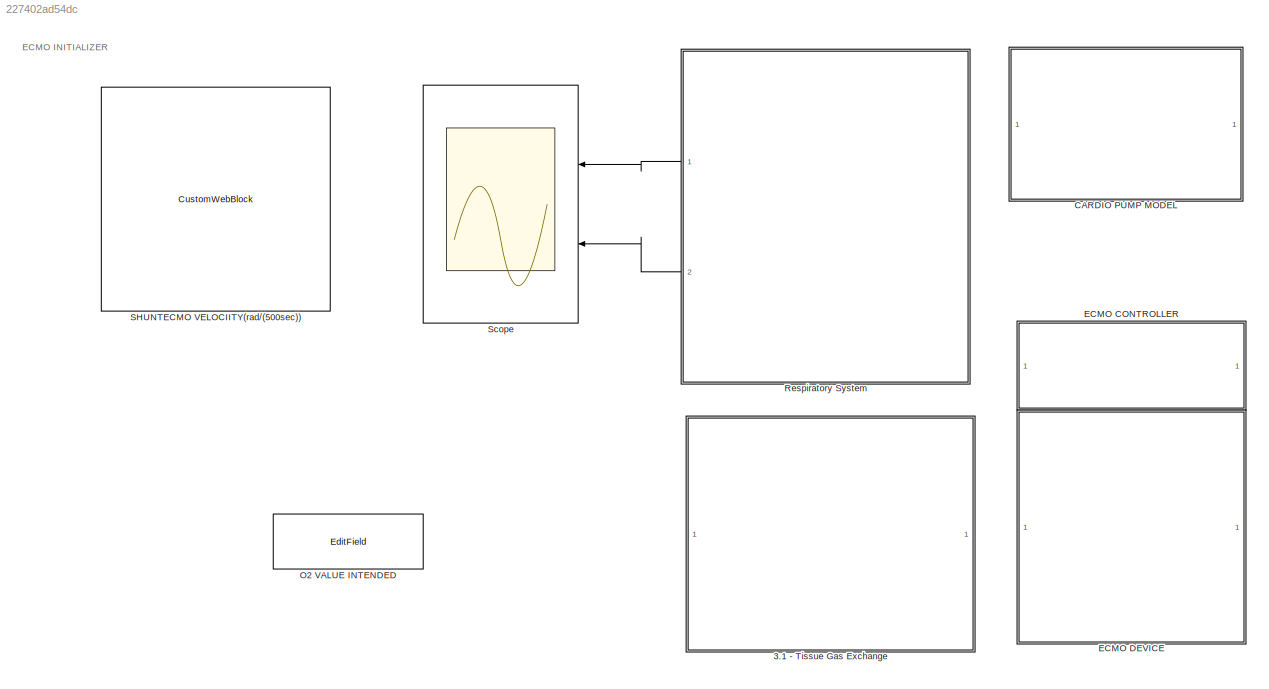
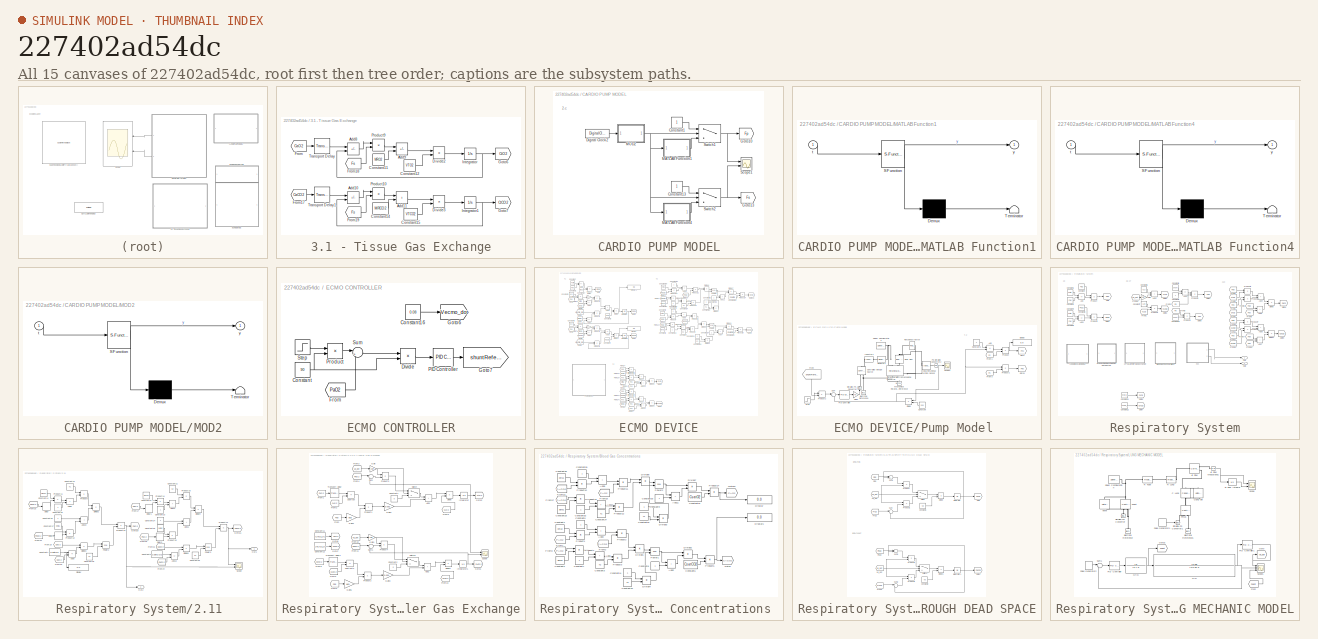
[diagram: thumbnail index - all 15 canvases of the model, root first then tree order]
MODEL slx_227402ad54dc
KIND model
CONFIG AbsTol = auto
CONFIG EnableMultiTasking = off
CONFIG FixedStep = Tsamp
CONFIG MaxStep = auto
CONFIG MinStep = auto
CONFIG RelTol = 1e-3
CONFIG SampleTimeConstraint = Unconstrained
CONFIG SolverName = ode4
CONFIG StartTime = 0.0
CONFIG StopTime = 300
WORKSPACE source: MATLAB code (in-file)
WORKSPACE Tsamp = 1e-3  (= 0.001)
WORKSPACE FIO2 = 50/100  (= 0.5)
WORKSPACE FICO2 = 0.0/100  (= 0)
WORKSPACE Patm = 760.0  (= 760)
WORKSPACE Pws = 47.0  (= 47)
WORKSPACE shunt = 36.5/100  (= 0.365)
WORKSPACE Clung = 0.062
WORKSPACE Rtube = 3.76
WORKSPACE Rlung = 1.4013
WORKSPACE VL0 = 3.40  (= 3.4)
WORKSPACE VReference = 0.2
WORKSPACE VD = 0.15
WORKSPACE PdO2_IC = 60.0  (= 60)
WORKSPACE PdCO2_IC = 53.0  (= 53)
WORKSPACE PAO2_IC = 57.0  (= 57)
WORKSPACE PACO2_IC = 55.0  (= 55)
WORKSPACE CaO2_IC = 0.184
WORKSPACE CaCO2_IC = 0.565
WORKSPACE Tau_TL = 10.0  (= 10)
WORKSPACE kEff = 0.55
WORKSPACE CsatO2 = 0.2128
WORKSPACE alpha1 = 0.03198
WORKSPACE beta1 = 0.008275
WORKSPACE K1 = 15.0  (= 15)
WORKSPACE h1 = 0.3836
WORKSPACE CsatCO2 = 1.9488
WORKSPACE alpha2 = 0.05591
WORKSPACE beta2 = 0.03255
WORKSPACE K2 = 194.4
WORKSPACE h2 = 1.819
WORKSPACE VTO2 = 7700
WORKSPACE VTCO2 = 6000
WORKSPACE MRO2 = 3.80  (= 3.8)
WORKSPACE MRCO2 = 3.30  (= 3.3)
WORKSPACE CvO2_IC = 0.134
WORKSPACE CvCO2_IC = 0.602
WORKSPACE Tau_LT = 18.0  (= 18)
WORKSPACE R = 10.0  (= 10)
WORKSPACE L = 10.0  (= 10)
WORKSPACE kem = 0.192
WORKSPACE JL = 8e-4  (= 0.0008)
WORKSPACE Ng = 0.5
WORKSPACE VEO2 = 1.5
WORKSPACE VECO2 = 1.5
WORKSPACE PEO2_IC = 200.0  (= 200)
WORKSPACE PECO2_IC = 40.0  (= 40)
WORKSPACE FIEO2 = 100/100  (= 1)
BLOCK [SubSystem] 3.1 - Tissue Gas Exchange
  Ports = []
  RequestExecContextInheritance = off
BLOCK [Sum] 3.1 - Tissue Gas Exchange/Add10
  IconShape = rectangular
  Inputs = +-
  Ports = [2, 1]
BLOCK [Sum] 3.1 - Tissue Gas Exchange/Add11
  IconShape = rectangular
  Ports = [2, 1]
BLOCK [Sum] 3.1 - Tissue Gas Exchange/Add8
  IconShape = rectangular
  Inputs = +-
  Ports = [2, 1]
BLOCK [Sum] 3.1 - Tissue Gas Exchange/Add9
  IconShape = rectangular
  Inputs = +-
  Ports = [2, 1]
BLOCK [Constant] 3.1 - Tissue Gas Exchange/Constant11
  SampleTime = Tsamp
  Value = MRO2
BLOCK [Constant] 3.1 - Tissue Gas Exchange/Constant12
  SampleTime = Tsamp
  Value = VTO2
BLOCK [Constant] 3.1 - Tissue Gas Exchange/Constant14
  SampleTime = Tsamp
  Value = MRCO2
BLOCK [Constant] 3.1 - Tissue Gas Exchange/Constant15
  SampleTime = Tsamp
  Value = VTCO2
BLOCK [Product] 3.1 - Tissue Gas Exchange/Divide2
  Inputs = */
  Ports = [2, 1]
BLOCK [Product] 3.1 - Tissue Gas Exchange/Divide3
  Inputs = */
  Ports = [2, 1]
BLOCK [From] 3.1 - Tissue Gas Exchange/From
  GotoTag = CaO2
  TagVisibility = global
BLOCK [From] 3.1 - Tissue Gas Exchange/From17
  GotoTag = CaCO2
  TagVisibility = global
BLOCK [From] 3.1 - Tissue Gas Exchange/From18
  GotoTag = Fs
  TagVisibility = global
BLOCK [From] 3.1 - Tissue Gas Exchange/From19
  GotoTag = Fs
  TagVisibility = global
BLOCK [Goto] 3.1 - Tissue Gas Exchange/Goto6
  GotoTag = CtO2
  TagVisibility = global
BLOCK [Goto] 3.1 - Tissue Gas Exchange/Goto7
  GotoTag = CtCO2
  TagVisibility = global
BLOCK [Integrator] 3.1 - Tissue Gas Exchange/Integrator
  InitialCondition = CvO2_IC
  Ports = [1, 1]
BLOCK [Integrator] 3.1 - Tissue Gas Exchange/Integrator1
  InitialCondition = CvCO2_IC
  Ports = [1, 1]
BLOCK [Product] 3.1 - Tissue Gas Exchange/Product10
  Ports = [2, 1]
BLOCK [Product] 3.1 - Tissue Gas Exchange/Product9
  Ports = [2, 1]
BLOCK [TransportDelay] 3.1 - Tissue Gas Exchange/Transport Delay
  DelayTime = Tau_LT
  InitialOutput = CaO2_IC
  Ports = [1, 1]
BLOCK [TransportDelay] 3.1 - Tissue Gas Exchange/Transport Delay1
  DelayTime = Tau_LT
  InitialOutput = CaCO2_IC
  Ports = [1, 1]
BLOCK [SubSystem] CARDIO PUMP MODEL
  Ports = []
  RequestExecContextInheritance = off
BLOCK [Constant] CARDIO PUMP MODEL/Constant1
BLOCK [Constant] CARDIO PUMP MODEL/Constant13
BLOCK [DigitalClock] CARDIO PUMP MODEL/Digital Clock2
  SampleTime = 0.001
BLOCK [Goto] CARDIO PUMP MODEL/Goto10
  GotoTag = Fp
  TagVisibility = global
BLOCK [Goto] CARDIO PUMP MODEL/Goto13
  GotoTag = Fs
  TagVisibility = global
BLOCK [SubSystem] CARDIO PUMP MODEL/MATLAB Function1
  ErrorFcn = Stateflow.Translate.translate
  PermitHierarchicalResolution = ExplicitOnly
  Ports = [1, 1]
  RequestExecContextInheritance = off
  SFBlockType = MATLAB Function
  TreatAsAtomicUnit = on
BLOCK [Demux] CARDIO PUMP MODEL/MATLAB Function1/ Demux 
  Outputs = 1
  Ports = [1, 1]
BLOCK [S-Function] CARDIO PUMP MODEL/MATLAB Function1/ SFunction 
  EnableBusSupport = on
  FunctionName = sf_sfun
  PortCounts = [1 2]
  Ports = [1, 2]
  SFcnIsStateOwnerBlock = off
  SFunctionDeploymentMode = off
  Tag = Stateflow S-Function 1
BLOCK [Terminator] CARDIO PUMP MODEL/MATLAB Function1/ Terminator 
BLOCK [Inport] CARDIO PUMP MODEL/MATLAB Function1/t
BLOCK [Outport] CARDIO PUMP MODEL/MATLAB Function1/y
BLOCK [SubSystem] CARDIO PUMP MODEL/MATLAB Function4
  ErrorFcn = Stateflow.Translate.translate
  PermitHierarchicalResolution = ExplicitOnly
  Ports = [1, 1]
  RequestExecContextInheritance = off
  SFBlockType = MATLAB Function
  TreatAsAtomicUnit = on
BLOCK [Demux] CARDIO PUMP MODEL/MATLAB Function4/ Demux 
  Outputs = 1
  Ports = [1, 1]
BLOCK [S-Function] CARDIO PUMP MODEL/MATLAB Function4/ SFunction 
  EnableBusSupport = on
  FunctionName = sf_sfun
  PortCounts = [1 2]
  Ports = [1, 2]
  SFcnIsStateOwnerBlock = off
  SFunctionDeploymentMode = off
  Tag = Stateflow S-Function 2
BLOCK [Terminator] CARDIO PUMP MODEL/MATLAB Function4/ Terminator 
BLOCK [Inport] CARDIO PUMP MODEL/MATLAB Function4/t
BLOCK [Outport] CARDIO PUMP MODEL/MATLAB Function4/y
BLOCK [SubSystem] CARDIO PUMP MODEL/MOD2
  ErrorFcn = Stateflow.Translate.translate
  PermitHierarchicalResolution = ExplicitOnly
  Ports = [1, 1]
  RequestExecContextInheritance = off
  SFBlockType = MATLAB Function
  TreatAsAtomicUnit = on
BLOCK [Demux] CARDIO PUMP MODEL/MOD2/ Demux 
  Outputs = 1
  Ports = [1, 1]
BLOCK [S-Function] CARDIO PUMP MODEL/MOD2/ SFunction 
  EnableBusSupport = on
  FunctionName = sf_sfun
  PortCounts = [1 2]
  Ports = [1, 2]
  SFcnIsStateOwnerBlock = off
  SFunctionDeploymentMode = off
  Tag = Stateflow S-Function 3
BLOCK [Terminator] CARDIO PUMP MODEL/MOD2/ Terminator 
BLOCK [Inport] CARDIO PUMP MODEL/MOD2/t
BLOCK [Outport] CARDIO PUMP MODEL/MOD2/y
BLOCK [Scope] CARDIO PUMP MODEL/Scope1
  Floating = off
  NumInputPorts = 2
  Ports = [2]
  ScopeSpecificationString = Simulink.scopes.TimeScopeBlockCfg('CurrentConfiguration', extmgr.ConfigurationSet(extmgr.Configuration('Core','General UI',true),extmgr.Configuration('Core','Source UI',true),extmgr.Configuration('Sources','WiredSimulink',true,'DataLoggingVariableName','ScopeData1'),extmgr.Configuration('Visuals','Time Domain',true,'SerializedDisplays',{struct('MinYLimReal','-82.75','MaxYLimReal','754.75','YLabelR...<+1467ch>
BLOCK [Switch] CARDIO PUMP MODEL/Switch1
  Criteria = u2 > Threshold
  InputSameDT = off
  SaturateOnIntegerOverflow = off
  Threshold = 0.25
BLOCK [Switch] CARDIO PUMP MODEL/Switch2
  Criteria = u2 > Threshold
  InputSameDT = off
  SaturateOnIntegerOverflow = off
  Threshold = 0.19
BLOCK [SubSystem] ECMO CONTROLLER
  NameLocation = top
  Ports = []
  RequestExecContextInheritance = off
BLOCK [Constant] ECMO CONTROLLER/Constant
  Value = 90
BLOCK [Constant] ECMO CONTROLLER/Constant16
  Value = 0.08
BLOCK [Product] ECMO CONTROLLER/Divide
  Inputs = */
  Ports = [2, 1]
BLOCK [From] ECMO CONTROLLER/From
  GotoTag = PaO2
  TagVisibility = global
BLOCK [Goto] ECMO CONTROLLER/Goto6
  GotoTag = Vecmo_dot
  TagVisibility = global
BLOCK [Goto] ECMO CONTROLLER/Goto7
  GotoTag = shuntReference
  TagVisibility = global
BLOCK [Reference] ECMO CONTROLLER/PID Controller  REF=pid_lib/PID Controller
  Ports = [1, 1]
  SourceBlock = pid_lib/PID Controller
  SourceProductBaseCode = SL
  SourceType = PID 1dof
BLOCK [Product] ECMO CONTROLLER/Product
  Ports = [2, 1]
BLOCK [Step] ECMO CONTROLLER/Step
  SampleTime = 0
  Time = 0
BLOCK [Sum] ECMO CONTROLLER/Sum
  Inputs = |+-
  Ports = [2, 1]
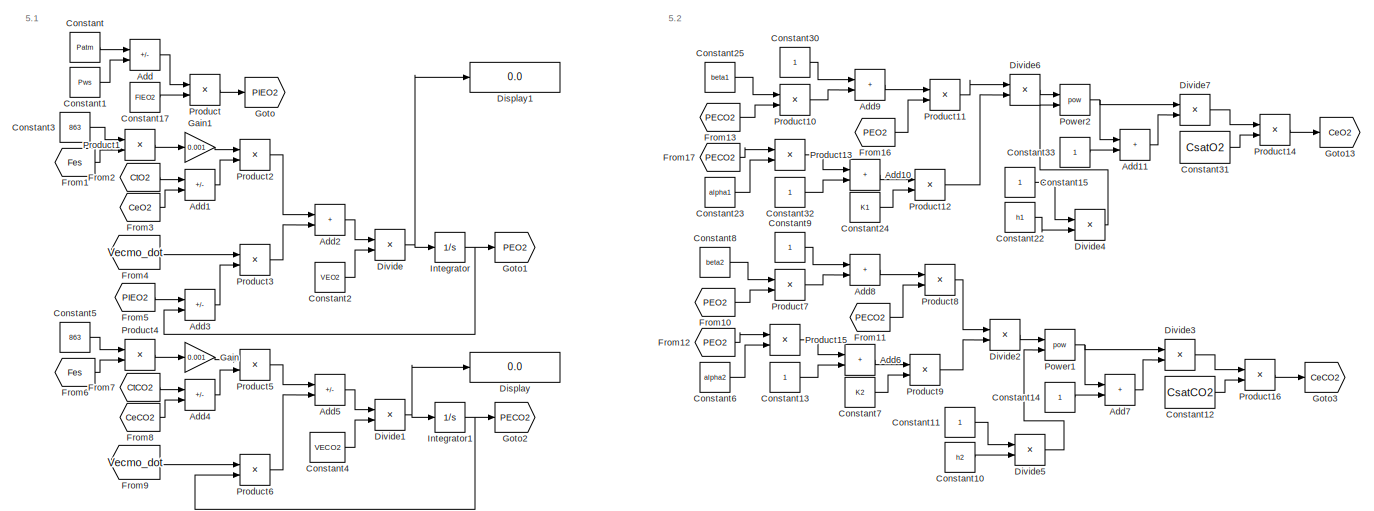
[diagram: ECMO DEVICE - part 1/2, full width, top band]
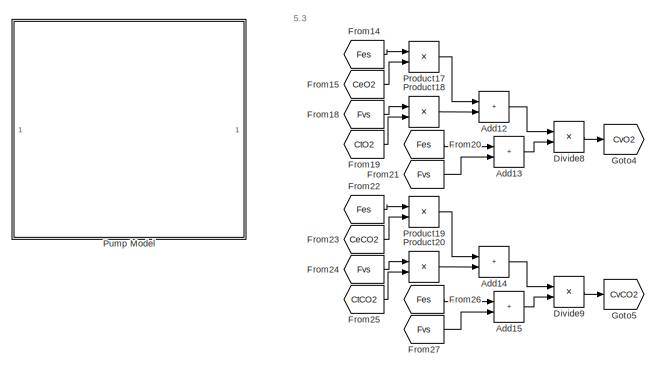
[diagram: ECMO DEVICE - part 2/2, bottom left region]
BLOCK [SubSystem] ECMO DEVICE
  Ports = []
  RequestExecContextInheritance = off
BLOCK [Sum] ECMO DEVICE/Add
  IconShape = rectangular
  Inputs = +-
  Ports = [2, 1]
BLOCK [Sum] ECMO DEVICE/Add1
  IconShape = rectangular
  Inputs = +-
  Ports = [2, 1]
BLOCK [Sum] ECMO DEVICE/Add10
  IconShape = rectangular
  Ports = [2, 1]
BLOCK [Sum] ECMO DEVICE/Add11
  IconShape = rectangular
  Ports = [2, 1]
BLOCK [Sum] ECMO DEVICE/Add12
  IconShape = rectangular
  Ports = [2, 1]
BLOCK [Sum] ECMO DEVICE/Add13
  IconShape = rectangular
  Ports = [2, 1]
BLOCK [Sum] ECMO DEVICE/Add14
  IconShape = rectangular
  Ports = [2, 1]
BLOCK [Sum] ECMO DEVICE/Add15
  IconShape = rectangular
  Ports = [2, 1]
BLOCK [Sum] ECMO DEVICE/Add2
  IconShape = rectangular
  Ports = [2, 1]
BLOCK [Sum] ECMO DEVICE/Add3
  IconShape = rectangular
  Inputs = +-
  Ports = [2, 1]
BLOCK [Sum] ECMO DEVICE/Add4
  IconShape = rectangular
  Inputs = +-
  Ports = [2, 1]
BLOCK [Sum] ECMO DEVICE/Add5
  IconShape = rectangular
  Inputs = +-
  Ports = [2, 1]
BLOCK [Sum] ECMO DEVICE/Add6
  IconShape = rectangular
  Ports = [2, 1]
BLOCK [Sum] ECMO DEVICE/Add7
  IconShape = rectangular
  Ports = [2, 1]
BLOCK [Sum] ECMO DEVICE/Add8
  IconShape = rectangular
  Ports = [2, 1]
BLOCK [Sum] ECMO DEVICE/Add9
  IconShape = rectangular
  Ports = [2, 1]
BLOCK [Constant] ECMO DEVICE/Constant
  Value = Patm
BLOCK [Constant] ECMO DEVICE/Constant1
  Value = Pws
BLOCK [Constant] ECMO DEVICE/Constant10
  SampleTime = Tsamp
  Value = h2
BLOCK [Constant] ECMO DEVICE/Constant11
  SampleTime = Tsamp
BLOCK [Constant] ECMO DEVICE/Constant12
  SampleTime = Tsamp
  Value = CsatCO2
BLOCK [Constant] ECMO DEVICE/Constant13
  SampleTime = Tsamp
BLOCK [Constant] ECMO DEVICE/Constant14
  SampleTime = Tsamp
BLOCK [Constant] ECMO DEVICE/Constant15
  SampleTime = Tsamp
BLOCK [Constant] ECMO DEVICE/Constant17
  Value = FIEO2
BLOCK [Constant] ECMO DEVICE/Constant2
  Value = VEO2
BLOCK [Constant] ECMO DEVICE/Constant22
  SampleTime = Tsamp
  Value = h1
BLOCK [Constant] ECMO DEVICE/Constant23
  SampleTime = Tsamp
  Value = alpha1
BLOCK [Constant] ECMO DEVICE/Constant24
  SampleTime = Tsamp
  Value = K1
BLOCK [Constant] ECMO DEVICE/Constant25
  SampleTime = Tsamp
  Value = beta1
BLOCK [Constant] ECMO DEVICE/Constant3
  Value = 863
BLOCK [Constant] ECMO DEVICE/Constant30
  SampleTime = Tsamp
BLOCK [Constant] ECMO DEVICE/Constant31
  SampleTime = Tsamp
  Value = CsatO2
BLOCK [Constant] ECMO DEVICE/Constant32
  SampleTime = Tsamp
BLOCK [Constant] ECMO DEVICE/Constant33
  SampleTime = Tsamp
BLOCK [Constant] ECMO DEVICE/Constant4
  Value = VECO2
BLOCK [Constant] ECMO DEVICE/Constant5
  Value = 863
BLOCK [Constant] ECMO DEVICE/Constant6
  SampleTime = Tsamp
  Value = alpha2
BLOCK [Constant] ECMO DEVICE/Constant7
  SampleTime = Tsamp
  Value = K2
BLOCK [Constant] ECMO DEVICE/Constant8
  SampleTime = Tsamp
  Value = beta2
BLOCK [Constant] ECMO DEVICE/Constant9
  SampleTime = Tsamp
BLOCK [Display] ECMO DEVICE/Display
  Decimation = 1
  Ports = [1]
BLOCK [Display] ECMO DEVICE/Display1
  Decimation = 1
  Ports = [1]
BLOCK [Product] ECMO DEVICE/Divide
  Inputs = */
  Ports = [2, 1]
BLOCK [Product] ECMO DEVICE/Divide1
  Inputs = */
  Ports = [2, 1]
BLOCK [Product] ECMO DEVICE/Divide2
  Inputs = */
  Ports = [2, 1]
BLOCK [Product] ECMO DEVICE/Divide3
  Inputs = */
  Ports = [2, 1]
BLOCK [Product] ECMO DEVICE/Divide4
  Inputs = */
  Ports = [2, 1]
BLOCK [Product] ECMO DEVICE/Divide5
  Inputs = */
  Ports = [2, 1]
BLOCK [Product] ECMO DEVICE/Divide6
  Inputs = */
  Ports = [2, 1]
BLOCK [Product] ECMO DEVICE/Divide7
  Inputs = */
  Ports = [2, 1]
BLOCK [Product] ECMO DEVICE/Divide8
  Inputs = */
  Ports = [2, 1]
BLOCK [Product] ECMO DEVICE/Divide9
  Inputs = */
  Ports = [2, 1]
BLOCK [From] ECMO DEVICE/From1
  GotoTag = Fes
  TagVisibility = global
BLOCK [From] ECMO DEVICE/From10
  GotoTag = PEO2
  TagVisibility = global
BLOCK [From] ECMO DEVICE/From11
  GotoTag = PECO2
  TagVisibility = global
BLOCK [From] ECMO DEVICE/From12
  GotoTag = PEO2
  TagVisibility = global
BLOCK [From] ECMO DEVICE/From13
  GotoTag = PECO2
  TagVisibility = global
BLOCK [From] ECMO DEVICE/From14
  GotoTag = Fes
  TagVisibility = global
BLOCK [From] ECMO DEVICE/From15
  GotoTag = CeO2
  TagVisibility = global
BLOCK [From] ECMO DEVICE/From16
  GotoTag = PEO2
  TagVisibility = global
BLOCK [From] ECMO DEVICE/From17
  GotoTag = PECO2
  TagVisibility = global
BLOCK [From] ECMO DEVICE/From18
  GotoTag = Fvs
  TagVisibility = global
BLOCK [From] ECMO DEVICE/From19
  GotoTag = CtO2
  TagVisibility = global
BLOCK [From] ECMO DEVICE/From2
  GotoTag = CtO2
  TagVisibility = global
BLOCK [From] ECMO DEVICE/From20
  GotoTag = Fes
  TagVisibility = global
BLOCK [From] ECMO DEVICE/From21
  GotoTag = Fvs
  TagVisibility = global
BLOCK [From] ECMO DEVICE/From22
  GotoTag = Fes
  TagVisibility = global
BLOCK [From] ECMO DEVICE/From23
  GotoTag = CeCO2
  TagVisibility = global
BLOCK [From] ECMO DEVICE/From24
  GotoTag = Fvs
  TagVisibility = global
BLOCK [From] ECMO DEVICE/From25
  GotoTag = CtCO2
  TagVisibility = global
BLOCK [From] ECMO DEVICE/From26
  GotoTag = Fes
  TagVisibility = global
BLOCK [From] ECMO DEVICE/From27
  GotoTag = Fvs
  TagVisibility = global
BLOCK [From] ECMO DEVICE/From3
  GotoTag = CeO2
  TagVisibility = global
BLOCK [From] ECMO DEVICE/From4
  GotoTag = Vecmo_dot
  TagVisibility = global
BLOCK [From] ECMO DEVICE/From5
  GotoTag = PIEO2
  TagVisibility = global
BLOCK [From] ECMO DEVICE/From6
  GotoTag = Fes
  TagVisibility = global
BLOCK [From] ECMO DEVICE/From7
  GotoTag = CtCO2
  TagVisibility = global
BLOCK [From] ECMO DEVICE/From8
  GotoTag = CeCO2
  TagVisibility = global
BLOCK [From] ECMO DEVICE/From9
  GotoTag = Vecmo_dot
  TagVisibility = global
BLOCK [Gain] ECMO DEVICE/Gain
  Gain = 0.001
BLOCK [Gain] ECMO DEVICE/Gain1
  Gain = 0.001
BLOCK [Goto] ECMO DEVICE/Goto
  GotoTag = PIEO2
  TagVisibility = global
BLOCK [Goto] ECMO DEVICE/Goto1
  GotoTag = PEO2
  TagVisibility = global
BLOCK [Goto] ECMO DEVICE/Goto13
  GotoTag = CeO2
  TagVisibility = global
BLOCK [Goto] ECMO DEVICE/Goto2
  GotoTag = PECO2
  TagVisibility = global
BLOCK [Goto] ECMO DEVICE/Goto3
  GotoTag = CeCO2
  TagVisibility = global
BLOCK [Goto] ECMO DEVICE/Goto4
  GotoTag = CvO2
  TagVisibility = global
BLOCK [Goto] ECMO DEVICE/Goto5
  GotoTag = CvCO2
  TagVisibility = global
BLOCK [Integrator] ECMO DEVICE/Integrator
  InitialCondition = PEO2_IC
  Ports = [1, 1]
BLOCK [Integrator] ECMO DEVICE/Integrator1
  InitialCondition = PECO2_IC
  Ports = [1, 1]
BLOCK [Math] ECMO DEVICE/Power1
  Operator = pow
  Ports = [2, 1]
BLOCK [Math] ECMO DEVICE/Power2
  Operator = pow
  Ports = [2, 1]
BLOCK [Product] ECMO DEVICE/Product
  Ports = [2, 1]
BLOCK [Product] ECMO DEVICE/Product1
  Ports = [2, 1]
BLOCK [Product] ECMO DEVICE/Product10
  Ports = [2, 1]
BLOCK [Product] ECMO DEVICE/Product11
  Ports = [2, 1]
BLOCK [Product] ECMO DEVICE/Product12
  Ports = [2, 1]
BLOCK [Product] ECMO DEVICE/Product13
  Ports = [2, 1]
BLOCK [Product] ECMO DEVICE/Product14
  Ports = [2, 1]
BLOCK [Product] ECMO DEVICE/Product15
  Ports = [2, 1]
BLOCK [Product] ECMO DEVICE/Product16
  Ports = [2, 1]
BLOCK [Product] ECMO DEVICE/Product17
  Ports = [2, 1]
BLOCK [Product] ECMO DEVICE/Product18
  Ports = [2, 1]
BLOCK [Product] ECMO DEVICE/Product19
  Ports = [2, 1]
BLOCK [Product] ECMO DEVICE/Product2
  Ports = [2, 1]
BLOCK [Product] ECMO DEVICE/Product20
  Ports = [2, 1]
BLOCK [Product] ECMO DEVICE/Product3
  Ports = [2, 1]
BLOCK [Product] ECMO DEVICE/Product4
  Ports = [2, 1]
BLOCK [Product] ECMO DEVICE/Product5
  Ports = [2, 1]
BLOCK [Product] ECMO DEVICE/Product6
  Ports = [2, 1]
BLOCK [Product] ECMO DEVICE/Product7
  Ports = [2, 1]
BLOCK [Product] ECMO DEVICE/Product8
  Ports = [2, 1]
BLOCK [Product] ECMO DEVICE/Product9
  Ports = [2, 1]
BLOCK [SubSystem] ECMO DEVICE/Pump Model 
  Ports = []
  RequestExecContextInheritance = off
BLOCK [Sum] ECMO DEVICE/Pump Model /Add
  IconShape = rectangular
  Inputs = +-
  Ports = [2, 1]
BLOCK [Constant] ECMO DEVICE/Pump Model /Constant
  NameLocation = top
  Value = 500
BLOCK [Constant] ECMO DEVICE/Pump Model /Constant1
BLOCK [Reference] ECMO DEVICE/Pump Model /Controlled Voltage Source  REF=fl_lib/Electrical/Electrical Sources/Controlled Voltage
Source
  NameLocation = right
  Ports = [0, 0, 0, 0, 0, 1, 2]
  SourceBlock = fl_lib/Electrical/Electrical Sources/Controlled Voltage\nSource
  SourceProductBaseCode = SS
  SourceType = Controlled Voltage\nSource
BLOCK [Display] ECMO DEVICE/Pump Model /Display
  Decimation = 1
  Ports = [1]
BLOCK [Product] ECMO DEVICE/Pump Model /Divide
  Inputs = */
  NameLocation = top
  Ports = [2, 1]
BLOCK [Reference] ECMO DEVICE/Pump Model /Electrical Reference  REF=fl_lib/Electrical/Electrical Elements/Electrical Reference
  NameLocation = right
  Ports = [0, 0, 0, 0, 0, 1]
  SourceBlock = fl_lib/Electrical/Electrical Elements/Electrical Reference
  SourceProductBaseCode = SS
  SourceType = Electrical Reference
BLOCK [From] ECMO DEVICE/Pump Model /From
  GotoTag = shuntReference
  NameLocation = left
  TagVisibility = global
BLOCK [From] ECMO DEVICE/Pump Model /From1
  GotoTag = Fs
  TagVisibility = global
BLOCK [From] ECMO DEVICE/Pump Model /From3
  GotoTag = Fs
  TagVisibility = global
BLOCK [Gain] ECMO DEVICE/Pump Model /Gain1
  Gain = 48
BLOCK [Reference] ECMO DEVICE/Pump Model /Gear Box  REF=fl_lib/Mechanical/Mechanisms/Gear Box
  NameLocation = right
  Ports = [0, 0, 0, 0, 0, 1, 1]
  SourceBlock = fl_lib/Mechanical/Mechanisms/Gear Box
  SourceProductBaseCode = SS
  SourceType = Gear Box
BLOCK [Goto] ECMO DEVICE/Pump Model /Goto
  GotoTag = Fvs
  TagVisibility = global
BLOCK [Goto] ECMO DEVICE/Pump Model /Goto1
  GotoTag = Fes
  TagVisibility = global
BLOCK [Reference] ECMO DEVICE/Pump Model /Ideal Rotational Motion Sensor  REF=fl_lib/Mechanical/Mechanical Sensors/Ideal Rotational
Motion Sensor
  Ports = [0, 0, 0, 0, 0, 1, 3]
  SourceBlock = fl_lib/Mechanical/Mechanical Sensors/Ideal Rotational\nMotion Sensor
  SourceProductBaseCode = SS
  SourceType = Ideal Rotational\nMotion Sensor
BLOCK [Reference] ECMO DEVICE/Pump Model /Inductor1  REF=fl_lib/Electrical/Electrical Elements/Inductor
  Ports = [0, 0, 0, 0, 0, 1, 1]
  SourceBlock = fl_lib/Electrical/Electrical Elements/Inductor
  SourceProductBaseCode = SS
  SourceType = Inductor
BLOCK [Reference] ECMO DEVICE/Pump Model /Mechanical Rotational Reference  REF=fl_lib/Mechanical/Rotational Elements/Mechanical
Rotational Reference
  NameLocation = right
  Ports = [0, 0, 0, 0, 0, 1]
  SourceBlock = fl_lib/Mechanical/Rotational Elements/Mechanical\nRotational Reference
  SourceProductBaseCode = SS
  SourceType = Mechanical\nRotational Reference
BLOCK [Reference] ECMO DEVICE/Pump Model /PID Controller  REF=pid_lib/PID Controller
  Ports = [1, 1]
  SourceBlock = pid_lib/PID Controller
  SourceProductBaseCode = SL
  SourceType = PID 1dof
BLOCK [Reference] ECMO DEVICE/Pump Model /PS-Simulink Converter2  REF=nesl_utility/PS-Simulink
Converter
  Ports = [0, 1, 0, 0, 0, 1]
  SourceBlock = nesl_utility/PS-Simulink\nConverter
  SourceProductBaseCode = SS
  SourceType = PS-Simulink\nConverter
BLOCK [Product] ECMO DEVICE/Pump Model /Product
  Ports = [2, 1]
BLOCK [Product] ECMO DEVICE/Pump Model /Product1
  Ports = [2, 1]
BLOCK [Product] ECMO DEVICE/Pump Model /Product2
  Ports = [2, 1]
BLOCK [Reference] ECMO DEVICE/Pump Model /Resistor1  REF=fl_lib/Electrical/Electrical Elements/Resistor
  Ports = [0, 0, 0, 0, 0, 1, 1]
  SourceBlock = fl_lib/Electrical/Electrical Elements/Resistor
  SourceProductBaseCode = SS
  SourceType = Resistor
BLOCK [Reference] ECMO DEVICE/Pump Model /Rotational Electromechanical Converter  REF=fl_lib/Electrical/Electrical Elements/Rotational
Electromechanical
Converter
  NameLocation = right
  Ports = [0, 0, 0, 0, 0, 2, 2]
  SourceBlock = fl_lib/Electrical/Electrical Elements/Rotational\nElectromechanical\nConverter
  SourceProductBaseCode = SS
  SourceType = Rotational\nElectromechanical\nConverter
BLOCK [Reference] ECMO DEVICE/Pump Model /Rotational Inerter  REF=fl_lib/Mechanical/Rotational Elements/Rotational Inerter
  Ports = [0, 0, 0, 0, 0, 1, 1]
  SourceBlock = fl_lib/Mechanical/Rotational Elements/Rotational Inerter
  SourceProductBaseCode = SS
  SourceType = Rotational Inerter
BLOCK [Scope] ECMO DEVICE/Pump Model /Scope1
  Floating = off
  NumInputPorts = 1
  Ports = [1]
  ScopeSpecificationString = Simulink.scopes.TimeScopeBlockCfg('CurrentConfiguration', extmgr.ConfigurationSet(extmgr.Configuration('Core','General UI',true,'FigureColor',[1 1 1]),extmgr.Configuration('Core','Source UI',true),extmgr.Configuration('Sources','WiredSimulink',true,'DataLoggingVariableName','ScopeData4'),extmgr.Configuration('Visuals','Time Domain',true,'SerializedDisplays',{struct('MinYLimReal','-46.52873','MaxYL...<+1697ch>
BLOCK [Reference] ECMO DEVICE/Pump Model /Simulink-PS Converter  REF=nesl_utility/Simulink-PS
Converter
  NameLocation = right
  Ports = [1, 0, 0, 0, 0, 0, 1]
  SourceBlock = nesl_utility/Simulink-PS\nConverter
  SourceProductBaseCode = SS
  SourceType = Simulink-PS\nConverter
BLOCK [Reference] ECMO DEVICE/Pump Model /Solver Configuration  REF=nesl_utility/Solver
Configuration
  Ports = [0, 0, 0, 0, 0, 0, 1]
  SourceBlock = nesl_utility/Solver\nConfiguration
  SourceProductBaseCode = SS
  SourceType = Solver\nConfiguration
BLOCK [Step] ECMO DEVICE/Pump Model /Step
  SampleTime = 0
  Time = 0
BLOCK [Sum] ECMO DEVICE/Pump Model /Sum
  Inputs = |+-
  Ports = [2, 1]
BLOCK [EditField] O2 VALUE INTENDED
  Alignment = Center
  LabelPosition = Hide
  ShowInitialText = on
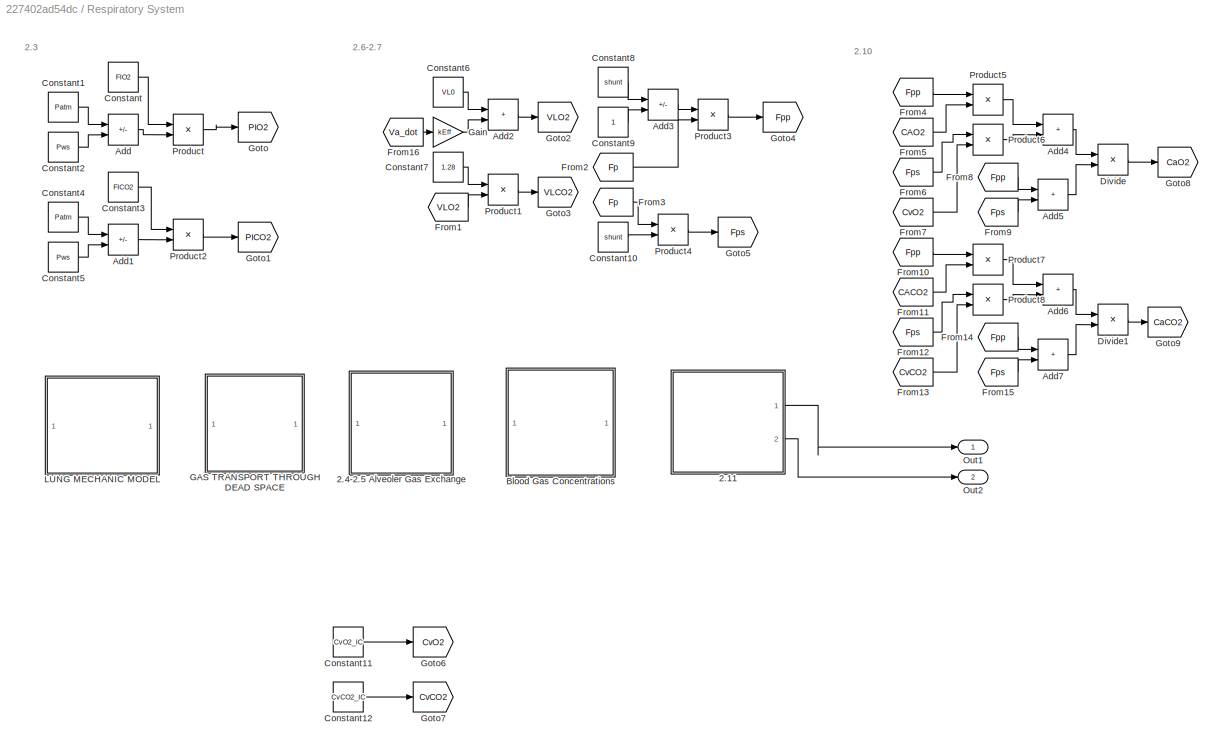
BLOCK [SubSystem] Respiratory System
  NameLocation = top
  Ports = [0, 2]
  RequestExecContextInheritance = off
BLOCK [SubSystem] Respiratory System/2.11 
  Ports = [0, 2]
  RequestExecContextInheritance = off
BLOCK [Sum] Respiratory System/2.11 /Add10
  IconShape = rectangular
  Ports = [2, 1]
BLOCK [Sum] Respiratory System/2.11 /Add11
  IconShape = rectangular
  Ports = [2, 1]
BLOCK [Sum] Respiratory System/2.11 /Add12
  IconShape = rectangular
  Ports = [2, 1]
BLOCK [Sum] Respiratory System/2.11 /Add13
  IconShape = rectangular
  Inputs = +-
  Ports = [2, 1]
BLOCK [Sum] Respiratory System/2.11 /Add8
  IconShape = rectangular
  Ports = [2, 1]
BLOCK [Sum] Respiratory System/2.11 /Add9
  IconShape = rectangular
  Inputs = +-
  Ports = [2, 1]
BLOCK [Constant] Respiratory System/2.11 /Constant1
  SampleTime = Tsamp
  Value = CsatO2
BLOCK [Constant] Respiratory System/2.11 /Constant13
  SampleTime = Tsamp
  Value = K1
BLOCK [Constant] Respiratory System/2.11 /Constant14
  SampleTime = Tsamp
  Value = alpha1
BLOCK [Constant] Respiratory System/2.11 /Constant15
  SampleTime = Tsamp
BLOCK [Constant] Respiratory System/2.11 /Constant16
  SampleTime = Tsamp
BLOCK [Constant] Respiratory System/2.11 /Constant17
  SampleTime = Tsamp
  Value = beta1
BLOCK [Constant] Respiratory System/2.11 /Constant18
  SampleTime = Tsamp
  Value = h1
BLOCK [Constant] Respiratory System/2.11 /Constant2
  SampleTime = Tsamp
  Value = CsatCO2
BLOCK [Constant] Respiratory System/2.11 /Constant21
  SampleTime = Tsamp
  Value = K2
BLOCK [Constant] Respiratory System/2.11 /Constant22
  SampleTime = Tsamp
  Value = alpha2
BLOCK [Constant] Respiratory System/2.11 /Constant23
  SampleTime = Tsamp
BLOCK [Constant] Respiratory System/2.11 /Constant24
  SampleTime = Tsamp
BLOCK [Constant] Respiratory System/2.11 /Constant25
  SampleTime = Tsamp
  Value = beta2
BLOCK [Constant] Respiratory System/2.11 /Constant26
  SampleTime = Tsamp
  Value = h2
BLOCK [Delay] Respiratory System/2.11 /Delay
  DelayLength = 1
  InputPortMap = u0
  Ports = [1, 1]
  SampleTime = Tsamp
BLOCK [Delay] Respiratory System/2.11 /Delay1
  DelayLength = 1
  InitialCondition = 0
  InputPortMap = u0
  Ports = [1, 1]
  SampleTime = Tsamp
BLOCK [Delay] Respiratory System/2.11 /Delay2
  DelayLength = 1
  InitialCondition = 0
  InputPortMap = u0
  Ports = [1, 1]
  SampleTime = Tsamp
BLOCK [Delay] Respiratory System/2.11 /Delay3
  DelayLength = 1
  InitialCondition = 0
  InputPortMap = u0
  Ports = [1, 1]
  SampleTime = Tsamp
BLOCK [Display] Respiratory System/2.11 /Display
  Decimation = 1
  Ports = [1]
BLOCK [Product] Respiratory System/2.11 /Divide2
  Inputs = */
  Ports = [2, 1]
BLOCK [Product] Respiratory System/2.11 /Divide3
  Inputs = */
  Ports = [2, 1]
BLOCK [Product] Respiratory System/2.11 /Divide4
  Inputs = */
  Ports = [2, 1]
BLOCK [Product] Respiratory System/2.11 /Divide5
  Inputs = */
  Ports = [2, 1]
BLOCK [From] Respiratory System/2.11 /From16
  GotoTag = PaCO2
  TagVisibility = global
BLOCK [From] Respiratory System/2.11 /From17
  GotoTag = PaO2
  TagVisibility = global
BLOCK [From] Respiratory System/2.11 /From18
  GotoTag = CaO2
  TagVisibility = global
BLOCK [From] Respiratory System/2.11 /From20
  GotoTag = CaO2
  TagVisibility = global
BLOCK [From] Respiratory System/2.11 /From21
  GotoTag = CaCO2
  TagVisibility = global
BLOCK [From] Respiratory System/2.11 /From22
  GotoTag = PaCO2
  TagVisibility = global
BLOCK [From] Respiratory System/2.11 /From24
  GotoTag = CaCO2
  TagVisibility = global
BLOCK [From] Respiratory System/2.11 /From25
  GotoTag = PaO2
  TagVisibility = global
BLOCK [Goto] Respiratory System/2.11 /Goto10
  GotoTag = PaO2
  TagVisibility = global
BLOCK [Goto] Respiratory System/2.11 /Goto11
  GotoTag = PaCO2
  TagVisibility = global
BLOCK [Outport] Respiratory System/2.11 /Out1
BLOCK [Outport] Respiratory System/2.11 /Out2
  Port = 2
BLOCK [Math] Respiratory System/2.11 /Power2
  Operator = pow
  Ports = [2, 1]
BLOCK [Math] Respiratory System/2.11 /Power3
  Operator = pow
  Ports = [2, 1]
BLOCK [Product] Respiratory System/2.11 /Product10
  Ports = [2, 1]
BLOCK [Product] Respiratory System/2.11 /Product11
  Ports = [2, 1]
BLOCK [Product] Respiratory System/2.11 /Product12
  Ports = [2, 1]
BLOCK [Product] Respiratory System/2.11 /Product13
  Ports = [2, 1]
BLOCK [Product] Respiratory System/2.11 /Product14
  Ports = [2, 1]
BLOCK [Product] Respiratory System/2.11 /Product15
  Ports = [2, 1]
BLOCK [Product] Respiratory System/2.11 /Product16
  Ports = [2, 1]
BLOCK [Product] Respiratory System/2.11 /Product9
  Ports = [2, 1]
BLOCK [Scope] Respiratory System/2.11 /Scope
  Floating = off
  NumInputPorts = 2
  Ports = [2]
  ScopeSpecificationString = Simulink.scopes.TimeScopeBlockCfg('CurrentConfiguration', extmgr.ConfigurationSet(extmgr.Configuration('Core','General UI',true,'FigureColor',[1 1 1]),extmgr.Configuration('Core','Source UI',true),extmgr.Configuration('Sources','WiredSimulink',true,'DataLoggingVariableName','ScopeData2'),extmgr.Configuration('Visuals','Time Domain',true,'SerializedDisplays',{struct('MinYLimReal','37.94134','MaxYLi...<+2571ch>
BLOCK [SubSystem] Respiratory System/2.4-2.5 Alveoler Gas Exchange
  Ports = []
  RequestExecContextInheritance = off
BLOCK [Sum] Respiratory System/2.4-2.5 Alveoler Gas Exchange/Add1
  IconShape = rectangular
  Ports = [2, 1]
BLOCK [Sum] Respiratory System/2.4-2.5 Alveoler Gas Exchange/Add2
  IconShape = rectangular
  Ports = [2, 1]
BLOCK [Constant] Respiratory System/2.4-2.5 Alveoler Gas Exchange/Constant1
  SampleTime = Tsamp
  Value = 0
BLOCK [Constant] Respiratory System/2.4-2.5 Alveoler Gas Exchange/Constant11
  Commented = on
  SampleTime = Tsamp
  Value = CvO2_IC
BLOCK [Constant] Respiratory System/2.4-2.5 Alveoler Gas Exchange/Constant12
  Commented = on
  SampleTime = Tsamp
  Value = CvCO2_IC
BLOCK [Constant] Respiratory System/2.4-2.5 Alveoler Gas Exchange/Constant2
  SampleTime = Tsamp
  Value = 0
BLOCK [Product] Respiratory System/2.4-2.5 Alveoler Gas Exchange/Divide
  Inputs = */
  Ports = [2, 1]
BLOCK [Product] Respiratory System/2.4-2.5 Alveoler Gas Exchange/Divide1
  Inputs = */
  Ports = [2, 1]
BLOCK [From] Respiratory System/2.4-2.5 Alveoler Gas Exchange/From
  GotoTag = Fpp
  TagVisibility = global
BLOCK [From] Respiratory System/2.4-2.5 Alveoler Gas Exchange/From1
  GotoTag = CvO2
  TagVisibility = global
BLOCK [From] Respiratory System/2.4-2.5 Alveoler Gas Exchange/From10
  GotoTag = Va_dot
  TagVisibility = global
BLOCK [From] Respiratory System/2.4-2.5 Alveoler Gas Exchange/From11
  GotoTag = PdCO2
  TagVisibility = global
BLOCK [From] Respiratory System/2.4-2.5 Alveoler Gas Exchange/From13
  GotoTag = VLCO2
  TagVisibility = global
BLOCK [From] Respiratory System/2.4-2.5 Alveoler Gas Exchange/From2
  GotoTag = CAO2
  TagVisibility = global
BLOCK [From] Respiratory System/2.4-2.5 Alveoler Gas Exchange/From3
  GotoTag = Va_dot
  TagVisibility = global
BLOCK [From] Respiratory System/2.4-2.5 Alveoler Gas Exchange/From4
  GotoTag = PdO2
  TagVisibility = global
BLOCK [From] Respiratory System/2.4-2.5 Alveoler Gas Exchange/From5
  GotoTag = Fpp
  TagVisibility = global
BLOCK [From] Respiratory System/2.4-2.5 Alveoler Gas Exchange/From6
  GotoTag = VLO2
  TagVisibility = global
BLOCK [From] Respiratory System/2.4-2.5 Alveoler Gas Exchange/From8
  GotoTag = CvCO2
  TagVisibility = global
BLOCK [From] Respiratory System/2.4-2.5 Alveoler Gas Exchange/From9
  GotoTag = CACO2
  TagVisibility = global
BLOCK [Gain] Respiratory System/2.4-2.5 Alveoler Gas Exchange/Gain
  Gain = kEff
BLOCK [Gain] Respiratory System/2.4-2.5 Alveoler Gas Exchange/Gain1
  Gain = kEff
BLOCK [Gain] Respiratory System/2.4-2.5 Alveoler Gas Exchange/Gain2
  Gain = 0.001
BLOCK [Gain] Respiratory System/2.4-2.5 Alveoler Gas Exchange/Gain3
  Gain = 0.001
BLOCK [Gain] Respiratory System/2.4-2.5 Alveoler Gas Exchange/Gain4
  Gain = 863
BLOCK [Gain] Respiratory System/2.4-2.5 Alveoler Gas Exchange/Gain5
  Gain = 863
BLOCK [Goto] Respiratory System/2.4-2.5 Alveoler Gas Exchange/Goto1
  GotoTag = PACO2
  TagVisibility = global
BLOCK [Goto] Respiratory System/2.4-2.5 Alveoler Gas Exchange/Goto2
  GotoTag = PAO2
  TagVisibility = global
BLOCK [Goto] Respiratory System/2.4-2.5 Alveoler Gas Exchange/Goto6
  Commented = on
  GotoTag = CvO2
  TagVisibility = global
BLOCK [Goto] Respiratory System/2.4-2.5 Alveoler Gas Exchange/Goto7
  Commented = on
  GotoTag = CvCO2
  TagVisibility = global
BLOCK [Integrator] Respiratory System/2.4-2.5 Alveoler Gas Exchange/Integrator
  InitialCondition = PAO2_IC
  Ports = [1, 1]
BLOCK [Integrator] Respiratory System/2.4-2.5 Alveoler Gas Exchange/Integrator1
  InitialCondition = PACO2_IC
  Ports = [1, 1]
BLOCK [Product] Respiratory System/2.4-2.5 Alveoler Gas Exchange/Product1
  Ports = [2, 1]
BLOCK [Product] Respiratory System/2.4-2.5 Alveoler Gas Exchange/Product2
  Ports = [2, 1]
BLOCK [Product] Respiratory System/2.4-2.5 Alveoler Gas Exchange/Product3
  Ports = [2, 1]
BLOCK [Product] Respiratory System/2.4-2.5 Alveoler Gas Exchange/Product4
  Ports = [2, 1]
BLOCK [Scope] Respiratory System/2.4-2.5 Alveoler Gas Exchange/Scope
  Floating = off
  NumInputPorts = 2
  Ports = [2]
  ScopeSpecificationString = Simulink.scopes.TimeScopeBlockCfg('CurrentConfiguration', extmgr.ConfigurationSet(extmgr.Configuration('Core','General UI',true),extmgr.Configuration('Core','Source UI',true),extmgr.Configuration('Sources','WiredSimulink',true,'DataLoggingVariableName','ScopeData1'),extmgr.Configuration('Visuals','Time Domain',true,'SerializedDisplays',{struct('MinYLimReal','89.79162','MaxYLimReal','101.49139','YL...<+2125ch>
BLOCK [Sum] Respiratory System/2.4-2.5 Alveoler Gas Exchange/Subtract
  IconShape = rectangular
  Inputs = +-
  Ports = [2, 1]
BLOCK [Sum] Respiratory System/2.4-2.5 Alveoler Gas Exchange/Subtract2
  IconShape = rectangular
  Inputs = +-
  Ports = [2, 1]
BLOCK [Sum] Respiratory System/2.4-2.5 Alveoler Gas Exchange/Sum
  Inputs = |+-
  Ports = [2, 1]
BLOCK [Sum] Respiratory System/2.4-2.5 Alveoler Gas Exchange/Sum1
  Inputs = |+-
  Ports = [2, 1]
BLOCK [Switch] Respiratory System/2.4-2.5 Alveoler Gas Exchange/Switch
  Criteria = u2 > Threshold
  InputSameDT = off
  SaturateOnIntegerOverflow = off
BLOCK [Switch] Respiratory System/2.4-2.5 Alveoler Gas Exchange/Switch1
  Criteria = u2 > Threshold
  InputSameDT = off
  SaturateOnIntegerOverflow = off
BLOCK [TransportDelay] Respiratory System/2.4-2.5 Alveoler Gas Exchange/Transport Delay
  BufferSize = 10240
  DelayTime = Tau_TL
  FixedBuffer = on
  InitialOutput = CvO2_IC
  Ports = [1, 1]
BLOCK [TransportDelay] Respiratory System/2.4-2.5 Alveoler Gas Exchange/Transport Delay1
  BufferSize = 10240
  DelayTime = Tau_TL
  FixedBuffer = on
  InitialOutput = CvCO2_IC
  Ports = [1, 1]
BLOCK [Sum] Respiratory System/Add
  IconShape = rectangular
  Inputs = +-
  Ports = [2, 1]
BLOCK [Sum] Respiratory System/Add1
  IconShape = rectangular
  Inputs = +-
  Ports = [2, 1]
BLOCK [Sum] Respiratory System/Add2
  IconShape = rectangular
  Ports = [2, 1]
BLOCK [Sum] Respiratory System/Add3
  IconShape = rectangular
  Inputs = -+
  Ports = [2, 1]
BLOCK [Sum] Respiratory System/Add4
  IconShape = rectangular
  Ports = [2, 1]
BLOCK [Sum] Respiratory System/Add5
  IconShape = rectangular
  Ports = [2, 1]
BLOCK [Sum] Respiratory System/Add6
  IconShape = rectangular
  Ports = [2, 1]
BLOCK [Sum] Respiratory System/Add7
  IconShape = rectangular
  Ports = [2, 1]
BLOCK [SubSystem] Respiratory System/Blood Gas Concentrations 
  Ports = []
  RequestExecContextInheritance = off
BLOCK [Sum] Respiratory System/Blood Gas Concentrations /Add1
  IconShape = rectangular
  Ports = [2, 1]
BLOCK [Sum] Respiratory System/Blood Gas Concentrations /Add10
  IconShape = rectangular
  Ports = [2, 1]
BLOCK [Sum] Respiratory System/Blood Gas Concentrations /Add11
  IconShape = rectangular
  Ports = [2, 1]
BLOCK [Sum] Respiratory System/Blood Gas Concentrations /Add2
  IconShape = rectangular
  Ports = [2, 1]
BLOCK [Sum] Respiratory System/Blood Gas Concentrations /Add3
  IconShape = rectangular
  Ports = [2, 1]
BLOCK [Sum] Respiratory System/Blood Gas Concentrations /Add9
  IconShape = rectangular
  Ports = [2, 1]
BLOCK [Constant] Respiratory System/Blood Gas Concentrations /Constant10
  SampleTime = Tsamp
  Value = h2
BLOCK [Constant] Respiratory System/Blood Gas Concentrations /Constant11
  SampleTime = Tsamp
BLOCK [Constant] Respiratory System/Blood Gas Concentrations /Constant2
  SampleTime = Tsamp
  Value = alpha2
BLOCK [Constant] Respiratory System/Blood Gas Concentrations /Constant22
  SampleTime = Tsamp
  Value = h1
BLOCK [Constant] Respiratory System/Blood Gas Concentrations /Constant23
  SampleTime = Tsamp
  Value = alpha1
BLOCK [Constant] Respiratory System/Blood Gas Concentrations /Constant24
  SampleTime = Tsamp
  Value = K1
BLOCK [Constant] Respiratory System/Blood Gas Concentrations /Constant25
  SampleTime = Tsamp
  Value = beta1
BLOCK [Constant] Respiratory System/Blood Gas Concentrations /Constant3
  SampleTime = Tsamp
  Value = K2
BLOCK [Constant] Respiratory System/Blood Gas Concentrations /Constant30
  SampleTime = Tsamp
BLOCK [Constant] Respiratory System/Blood Gas Concentrations /Constant31
  SampleTime = Tsamp
  Value = CsatO2
BLOCK [Constant] Respiratory System/Blood Gas Concentrations /Constant32
  SampleTime = Tsamp
BLOCK [Constant] Respiratory System/Blood Gas Concentrations /Constant33
  SampleTime = Tsamp
BLOCK [Constant] Respiratory System/Blood Gas Concentrations /Constant4
  SampleTime = Tsamp
  Value = beta2
BLOCK [Constant] Respiratory System/Blood Gas Concentrations /Constant5
  SampleTime = Tsamp
BLOCK [Constant] Respiratory System/Blood Gas Concentrations /Constant6
  SampleTime = Tsamp
  Value = CsatCO2
BLOCK [Constant] Respiratory System/Blood Gas Concentrations /Constant7
  SampleTime = Tsamp
BLOCK [Constant] Respiratory System/Blood Gas Concentrations /Constant8
  SampleTime = Tsamp
BLOCK [Constant] Respiratory System/Blood Gas Concentrations /Constant9
  SampleTime = Tsamp
BLOCK [Display] Respiratory System/Blood Gas Concentrations /Display
  Decimation = 1
  Ports = [1]
BLOCK [Display] Respiratory System/Blood Gas Concentrations /Display1
  Decimation = 1
  Ports = [1]
BLOCK [Product] Respiratory System/Blood Gas Concentrations /Divide1
  Inputs = */
  Ports = [2, 1]
BLOCK [Product] Respiratory System/Blood Gas Concentrations /Divide2
  Inputs = */
  Ports = [2, 1]
BLOCK [Product] Respiratory System/Blood Gas Concentrations /Divide3
  Inputs = */
  Ports = [2, 1]
BLOCK [Product] Respiratory System/Blood Gas Concentrations /Divide4
  Inputs = */
  Ports = [2, 1]
BLOCK [Product] Respiratory System/Blood Gas Concentrations /Divide6
  Inputs = */
  Ports = [2, 1]
BLOCK [Product] Respiratory System/Blood Gas Concentrations /Divide7
  Inputs = */
  Ports = [2, 1]
BLOCK [From] Respiratory System/Blood Gas Concentrations /From1
  GotoTag = PAO2
  TagVisibility = global
BLOCK [From] Respiratory System/Blood Gas Concentrations /From13
  GotoTag = PACO2
  TagVisibility = global
BLOCK [From] Respiratory System/Blood Gas Concentrations /From16
  GotoTag = PAO2
  TagVisibility = global
BLOCK [From] Respiratory System/Blood Gas Concentrations /From17
  GotoTag = PACO2
  TagVisibility = global
BLOCK [From] Respiratory System/Blood Gas Concentrations /From2
  GotoTag = PACO2
  TagVisibility = global
BLOCK [From] Respiratory System/Blood Gas Concentrations /From3
  GotoTag = PAO2
  TagVisibility = global
BLOCK [Goto] Respiratory System/Blood Gas Concentrations /Goto1
  GotoTag = CACO2
  TagVisibility = global
BLOCK [Goto] Respiratory System/Blood Gas Concentrations /Goto13
  GotoTag = CAO2
  TagVisibility = global
BLOCK [Math] Respiratory System/Blood Gas Concentrations /Power1
  Operator = pow
  Ports = [2, 1]
BLOCK [Math] Respiratory System/Blood Gas Concentrations /Power2
  Operator = pow
  Ports = [2, 1]
BLOCK [Product] Respiratory System/Blood Gas Concentrations /Product1
  Ports = [2, 1]
BLOCK [Product] Respiratory System/Blood Gas Concentrations /Product10
  Ports = [2, 1]
BLOCK [Product] Respiratory System/Blood Gas Concentrations /Product11
  Ports = [2, 1]
BLOCK [Product] Respiratory System/Blood Gas Concentrations /Product12
  Ports = [2, 1]
BLOCK [Product] Respiratory System/Blood Gas Concentrations /Product13
  Ports = [2, 1]
BLOCK [Product] Respiratory System/Blood Gas Concentrations /Product14
  Ports = [2, 1]
BLOCK [Product] Respiratory System/Blood Gas Concentrations /Product2
  Ports = [2, 1]
BLOCK [Product] Respiratory System/Blood Gas Concentrations /Product3
  Ports = [2, 1]
BLOCK [Product] Respiratory System/Blood Gas Concentrations /Product4
  Ports = [2, 1]
BLOCK [Product] Respiratory System/Blood Gas Concentrations /Product5
  Ports = [2, 1]
BLOCK [Constant] Respiratory System/Constant
  SampleTime = Tsamp
  Value = FIO2
BLOCK [Constant] Respiratory System/Constant1
  SampleTime = Tsamp
  Value = Patm
BLOCK [Constant] Respiratory System/Constant10
  SampleTime = Tsamp
  Value = shunt
BLOCK [Constant] Respiratory System/Constant11
  Commented = on
  SampleTime = Tsamp
  Value = CvO2_IC
BLOCK [Constant] Respiratory System/Constant12
  Commented = on
  SampleTime = Tsamp
  Value = CvCO2_IC
BLOCK [Constant] Respiratory System/Constant2
  SampleTime = Tsamp
  Value = Pws
BLOCK [Constant] Respiratory System/Constant3
  SampleTime = Tsamp
  Value = FICO2
BLOCK [Constant] Respiratory System/Constant4
  SampleTime = Tsamp
  Value = Patm
BLOCK [Constant] Respiratory System/Constant5
  SampleTime = Tsamp
  Value = Pws
BLOCK [Constant] Respiratory System/Constant6
  SampleTime = Tsamp
  Value = VL0
BLOCK [Constant] Respiratory System/Constant7
  SampleTime = Tsamp
  Value = 1.28
BLOCK [Constant] Respiratory System/Constant8
  SampleTime = Tsamp
  Value = shunt
BLOCK [Constant] Respiratory System/Constant9
  SampleTime = Tsamp
BLOCK [Product] Respiratory System/Divide
  Inputs = */
  Ports = [2, 1]
BLOCK [Product] Respiratory System/Divide1
  Inputs = */
  Ports = [2, 1]
BLOCK [From] Respiratory System/From1
  GotoTag = VLO2
  TagVisibility = global
BLOCK [From] Respiratory System/From10
  GotoTag = Fpp
  TagVisibility = global
BLOCK [From] Respiratory System/From11
  GotoTag = CACO2
  TagVisibility = global
BLOCK [From] Respiratory System/From12
  GotoTag = Fps
  TagVisibility = global
BLOCK [From] Respiratory System/From13
  GotoTag = CvCO2
  TagVisibility = global
BLOCK [From] Respiratory System/From14
  GotoTag = Fpp
  TagVisibility = global
BLOCK [From] Respiratory System/From15
  GotoTag = Fps
  TagVisibility = global
BLOCK [From] Respiratory System/From16
  GotoTag = Va_dot
  TagVisibility = global
BLOCK [From] Respiratory System/From2
  GotoTag = Fp
  TagVisibility = global
BLOCK [From] Respiratory System/From3
  GotoTag = Fp
  TagVisibility = global
BLOCK [From] Respiratory System/From4
  GotoTag = Fpp
  TagVisibility = global
BLOCK [From] Respiratory System/From5
  GotoTag = CAO2
  TagVisibility = global
BLOCK [From] Respiratory System/From6
  GotoTag = Fps
  TagVisibility = global
BLOCK [From] Respiratory System/From7
  GotoTag = CvO2
  TagVisibility = global
BLOCK [From] Respiratory System/From8
  GotoTag = Fpp
  TagVisibility = global
BLOCK [From] Respiratory System/From9
  GotoTag = Fps
  TagVisibility = global
BLOCK [SubSystem] Respiratory System/GAS TRANSPORT THROUGH DEAD SPACE
  Ports = []
  RequestExecContextInheritance = off
BLOCK [Constant] Respiratory System/GAS TRANSPORT THROUGH DEAD SPACE/Constant1
  SampleTime = Tsamp
  Value = VD
BLOCK [Constant] Respiratory System/GAS TRANSPORT THROUGH DEAD SPACE/Constant2
  SampleTime = Tsamp
  Value = VD
BLOCK [Product] Respiratory System/GAS TRANSPORT THROUGH DEAD SPACE/Divide
  Inputs = */
  Ports = [2, 1]
BLOCK [Product] Respiratory System/GAS TRANSPORT THROUGH DEAD SPACE/Divide1
  Inputs = */
  Ports = [2, 1]
BLOCK [Goto] Respiratory System/GAS TRANSPORT THROUGH DEAD SPACE/Goto
  GotoTag = PdO2
  TagVisibility = global
BLOCK [Goto] Respiratory System/GAS TRANSPORT THROUGH DEAD SPACE/Goto1
  GotoTag = PdCO2
  TagVisibility = global
BLOCK [Integrator] Respiratory System/GAS TRANSPORT THROUGH DEAD SPACE/Integrator
  InitialCondition = PdO2_IC
  Ports = [1, 1]
BLOCK [Integrator] Respiratory System/GAS TRANSPORT THROUGH DEAD SPACE/Integrator1
  InitialCondition = PdCO2_IC
  Ports = [1, 1]
BLOCK [From] Respiratory System/GAS TRANSPORT THROUGH DEAD SPACE/PACO2
  GotoTag = PACO2
  TagVisibility = global
BLOCK [From] Respiratory System/GAS TRANSPORT THROUGH DEAD SPACE/PAO2
  GotoTag = PAO2
  TagVisibility = global
BLOCK [From] Respiratory System/GAS TRANSPORT THROUGH DEAD SPACE/PICO2 
  GotoTag = PICO2
  TagVisibility = global
BLOCK [From] Respiratory System/GAS TRANSPORT THROUGH DEAD SPACE/PIO2
  GotoTag = PIO2
  TagVisibility = global
BLOCK [Product] Respiratory System/GAS TRANSPORT THROUGH DEAD SPACE/Product
  Ports = [2, 1]
BLOCK [Product] Respiratory System/GAS TRANSPORT THROUGH DEAD SPACE/Product1
  Ports = [2, 1]
BLOCK [Product] Respiratory System/GAS TRANSPORT THROUGH DEAD SPACE/Product2
  Ports = [2, 1]
BLOCK [Product] Respiratory System/GAS TRANSPORT THROUGH DEAD SPACE/Product3
  Ports = [2, 1]
BLOCK [Sum] Respiratory System/GAS TRANSPORT THROUGH DEAD SPACE/Sum
  Inputs = |-+
  Ports = [2, 1]
BLOCK [Sum] Respiratory System/GAS TRANSPORT THROUGH DEAD SPACE/Sum1
  Inputs = |+-
  Ports = [2, 1]
BLOCK [Sum] Respiratory System/GAS TRANSPORT THROUGH DEAD SPACE/Sum2
  Inputs = |-+
  Ports = [2, 1]
BLOCK [Sum] Respiratory System/GAS TRANSPORT THROUGH DEAD SPACE/Sum3
  Inputs = |+-
  Ports = [2, 1]
BLOCK [Switch] Respiratory System/GAS TRANSPORT THROUGH DEAD SPACE/Switch
  InputSameDT = off
  SaturateOnIntegerOverflow = off
BLOCK [Switch] Respiratory System/GAS TRANSPORT THROUGH DEAD SPACE/Switch1
  InputSameDT = off
  SaturateOnIntegerOverflow = off
BLOCK [From] Respiratory System/GAS TRANSPORT THROUGH DEAD SPACE/Va_dot
  GotoTag = Va_dot
  TagVisibility = global
BLOCK [From] Respiratory System/GAS TRANSPORT THROUGH DEAD SPACE/Va_dot 
  GotoTag = Va_dot
  TagVisibility = global
BLOCK [Gain] Respiratory System/Gain
  Gain = kEff
BLOCK [Goto] Respiratory System/Goto
  GotoTag = PIO2
  TagVisibility = global
BLOCK [Goto] Respiratory System/Goto1
  GotoTag = PICO2
  TagVisibility = global
BLOCK [Goto] Respiratory System/Goto2
  GotoTag = VLO2
  TagVisibility = global
BLOCK [Goto] Respiratory System/Goto3
  GotoTag = VLCO2
  TagVisibility = global
BLOCK [Goto] Respiratory System/Goto4
  GotoTag = Fpp
  TagVisibility = global
BLOCK [Goto] Respiratory System/Goto5
  GotoTag = Fps
  TagVisibility = global
BLOCK [Goto] Respiratory System/Goto6
  Commented = on
  GotoTag = CvO2
  TagVisibility = global
BLOCK [Goto] Respiratory System/Goto7
  Commented = on
  GotoTag = CvCO2
  TagVisibility = global
BLOCK [Goto] Respiratory System/Goto8
  GotoTag = CaO2
  TagVisibility = global
BLOCK [Goto] Respiratory System/Goto9
  GotoTag = CaCO2
  TagVisibility = global
BLOCK [SubSystem] Respiratory System/LUNG MECHANIC MODEL
  Ports = []
  RequestExecContextInheritance = off
BLOCK [Reference] Respiratory System/LUNG MECHANIC MODEL/Air Flow  REF=fl_lib/Electrical/Electrical Sensors/Current Sensor
  Ports = [0, 0, 0, 0, 0, 1, 2]
  SourceBlock = fl_lib/Electrical/Electrical Sensors/Current Sensor
  SourceProductBaseCode = SS
  SourceType = Current Sensor
BLOCK [Integrator] Respiratory System/LUNG MECHANIC MODEL/Air Flow Integral
  InitialCondition = VReference
  Ports = [1, 1]
BLOCK [Reference] Respiratory System/LUNG MECHANIC MODEL/Air Flow Measurand1  REF=nesl_utility/PS-Simulink
Converter
  Ports = [0, 1, 0, 0, 0, 1]
  SourceBlock = nesl_utility/PS-Simulink\nConverter
  SourceProductBaseCode = SS
  SourceType = PS-Simulink\nConverter
BLOCK [Reference] Respiratory System/LUNG MECHANIC MODEL/C Lung  REF=fl_lib/Electrical/Electrical Elements/Capacitor
  NameLocation = left
  Ports = [0, 0, 0, 0, 0, 1, 1]
  SourceBlock = fl_lib/Electrical/Electrical Elements/Capacitor
  SourceProductBaseCode = SS
  SourceType = Capacitor
BLOCK [Reference] Respiratory System/LUNG MECHANIC MODEL/Clung Volt  REF=fl_lib/Electrical/Electrical Sensors/Voltage Sensor
  NameLocation = right
  Ports = [0, 0, 0, 0, 0, 1, 2]
  SourceBlock = fl_lib/Electrical/Electrical Sensors/Voltage Sensor
  SourceProductBaseCode = SS
  SourceType = Voltage Sensor
BLOCK [Reference] Respiratory System/LUNG MECHANIC MODEL/Electrical Reference  REF=fl_lib/Electrical/Electrical Elements/Electrical Reference
  NameLocation = right
  Ports = [0, 0, 0, 0, 0, 1]
  SourceBlock = fl_lib/Electrical/Electrical Elements/Electrical Reference
  SourceProductBaseCode = SS
  SourceType = Electrical Reference
BLOCK [Reference] Respiratory System/LUNG MECHANIC MODEL/Electrical Reference1  REF=fl_lib/Electrical/Electrical Elements/Electrical Reference
  NameLocation = right
  Ports = [0, 0, 0, 0, 0, 1]
  SourceBlock = fl_lib/Electrical/Electrical Elements/Electrical Reference
  SourceProductBaseCode = SS
  SourceType = Electrical Reference
BLOCK [From] Respiratory System/LUNG MECHANIC MODEL/From
  GotoTag = Pvent
  TagVisibility = global
BLOCK [TransferFcn] Respiratory System/LUNG MECHANIC MODEL/G(s) 
  Denominator = [4*0.08 1]
  Numerator = [0.08]
BLOCK [TransferFcn] Respiratory System/LUNG MECHANIC MODEL/Gf(s) 
  Denominator = [0.1 1]
BLOCK [Goto] Respiratory System/LUNG MECHANIC MODEL/Goto
  GotoTag = Va_dot
  TagVisibility = global
BLOCK [Goto] Respiratory System/LUNG MECHANIC MODEL/Goto2
  GotoTag = Pvent
  TagVisibility = global
BLOCK [Reference] Respiratory System/LUNG MECHANIC MODEL/PID Controller  REF=pid_lib/PID Controller
  Ports = [1, 1]
  SourceBlock = pid_lib/PID Controller
  SourceProductBaseCode = SL
  SourceType = PID 1dof
BLOCK [Reference] Respiratory System/LUNG MECHANIC MODEL/PID Controller1  REF=pid_lib/PID Controller
  Ports = [1, 1]
  SourceBlock = pid_lib/PID Controller
  SourceProductBaseCode = SL
  SourceType = PID 1dof
BLOCK [Reference] Respiratory System/LUNG MECHANIC MODEL/Pmus  REF=fl_lib/Electrical/Electrical Sources/Controlled Voltage
Source
  NameLocation = right
  Ports = [0, 0, 0, 0, 0, 1, 2]
  SourceBlock = fl_lib/Electrical/Electrical Sources/Controlled Voltage\nSource
  SourceProductBaseCode = SS
  SourceType = Controlled Voltage\nSource
BLOCK [DiscretePulseGenerator] Respiratory System/LUNG MECHANIC MODEL/Pulse Generator1
  Amplitude = 0
  Period = 5
  Ports = [0, 1]
  PulseType = Time based
  PulseWidth = 35
BLOCK [DiscretePulseGenerator] Respiratory System/LUNG MECHANIC MODEL/Pulse Generator2
  Amplitude = VReference
  Period = 5
  Ports = [0, 1]
  PulseType = Time based
  PulseWidth = 35
BLOCK [Reference] Respiratory System/LUNG MECHANIC MODEL/Pvent  REF=fl_lib/Electrical/Electrical Sources/Controlled Voltage
Source
  NameLocation = right
  Ports = [0, 0, 0, 0, 0, 1, 2]
  SourceBlock = fl_lib/Electrical/Electrical Sources/Controlled Voltage\nSource
  SourceProductBaseCode = SS
  SourceType = Controlled Voltage\nSource
BLOCK [Reference] Respiratory System/LUNG MECHANIC MODEL/R Lung  REF=fl_lib/Electrical/Electrical Elements/Resistor
  Ports = [0, 0, 0, 0, 0, 1, 1]
  SourceBlock = fl_lib/Electrical/Electrical Elements/Resistor
  SourceProductBaseCode = SS
  SourceType = Resistor
BLOCK [Reference] Respiratory System/LUNG MECHANIC MODEL/R Tube  REF=fl_lib/Electrical/Electrical Elements/Resistor
  Ports = [0, 0, 0, 0, 0, 1, 1]
  SourceBlock = fl_lib/Electrical/Electrical Elements/Resistor
  SourceProductBaseCode = SS
  SourceType = Resistor
BLOCK [Scope] Respiratory System/LUNG MECHANIC MODEL/Scope
  Floating = off
  NumInputPorts = 2
  Ports = [2]
  ScopeSpecificationString = Simulink.scopes.TimeScopeBlockCfg('CurrentConfiguration', extmgr.ConfigurationSet(extmgr.Configuration('Core','General UI',true,'FigureColor',[1 1 1]),extmgr.Configuration('Core','Source UI',true),extmgr.Configuration('Sources','WiredSimulink',true),extmgr.Configuration('Visuals','Time Domain',true,'SerializedDisplays',{struct('MinYLimReal','-1.00000','MaxYLimReal','1.00000','YLabelReal','Amplitud...<+3071ch>
BLOCK [Scope] Respiratory System/LUNG MECHANIC MODEL/Scope1
  Floating = off
  NumInputPorts = 3
  Ports = [3]
  ScopeSpecificationString = Simulink.scopes.TimeScopeBlockCfg('CurrentConfiguration', extmgr.ConfigurationSet(extmgr.Configuration('Core','General UI',true,'FigureColor',[1 1 1]),extmgr.Configuration('Core','Source UI',true),extmgr.Configuration('Sources','WiredSimulink',true,'DataLoggingVariableName','ScopeData1'),extmgr.Configuration('Visuals','Time Domain',true,'SerializedDisplays',{struct('MinYLimReal','-1.04724','MaxYLi...<+2995ch>
BLOCK [Reference] Respiratory System/LUNG MECHANIC MODEL/Simulink-PS Converter  REF=nesl_utility/Simulink-PS
Converter
  NameLocation = right
  Ports = [1, 0, 0, 0, 0, 0, 1]
  SourceBlock = nesl_utility/Simulink-PS\nConverter
  SourceProductBaseCode = SS
  SourceType = Simulink-PS\nConverter
BLOCK [Reference] Respiratory System/LUNG MECHANIC MODEL/Simulink-PS Converter1  REF=nesl_utility/Simulink-PS
Converter
  Ports = [1, 0, 0, 0, 0, 0, 1]
  SourceBlock = nesl_utility/Simulink-PS\nConverter
  SourceProductBaseCode = SS
  SourceType = Simulink-PS\nConverter
BLOCK [Reference] Respiratory System/LUNG MECHANIC MODEL/Solver Configuration  REF=nesl_utility/Solver
Configuration
  Ports = [0, 0, 0, 0, 0, 0, 1]
  SourceBlock = nesl_utility/Solver\nConfiguration
  SourceProductBaseCode = SS
  SourceType = Solver\nConfiguration
BLOCK [Sum] Respiratory System/LUNG MECHANIC MODEL/Sum1
  Inputs = |+-
  Ports = [2, 1]
BLOCK [Reference] Respiratory System/LUNG MECHANIC MODEL/Ventil  REF=fl_lib/Electrical/Electrical Sensors/Voltage Sensor
  NameLocation = right
  Ports = [0, 0, 0, 0, 0, 1, 2]
  SourceBlock = fl_lib/Electrical/Electrical Sensors/Voltage Sensor
  SourceProductBaseCode = SS
  SourceType = Voltage Sensor
BLOCK [Outport] Respiratory System/Out1
BLOCK [Outport] Respiratory System/Out2
  Port = 2
BLOCK [Product] Respiratory System/Product
  Ports = [2, 1]
BLOCK [Product] Respiratory System/Product1
  Ports = [2, 1]
BLOCK [Product] Respiratory System/Product2
  Ports = [2, 1]
BLOCK [Product] Respiratory System/Product3
  Ports = [2, 1]
BLOCK [Product] Respiratory System/Product4
  Ports = [2, 1]
BLOCK [Product] Respiratory System/Product5
  Ports = [2, 1]
BLOCK [Product] Respiratory System/Product6
  Ports = [2, 1]
BLOCK [Product] Respiratory System/Product7
  Ports = [2, 1]
BLOCK [Product] Respiratory System/Product8
  Ports = [2, 1]
BLOCK [CustomWebBlock] SHUNTECMO VELOCIITY(rad//(500sec))
  Configuration = {"components":[{"name":"CircularScaleComponent","settings":{"bounds":{"max":1,"min":0,"tickInterval":"auto"},"direction":"cw","flipLimits":0,"innerRadius":0.5069579852213397,"internalTickHeightScaleFactor":1,"labelColor":[250,245,200],"labelFont":{"font":"Arial","fontSize":12},"labelTransparency":1,"labelTrasparency":1,"minorTickHeightScaleFactor":0.2,"needleImage":{"size":[200,50],"src":"data:ima...<+21533ch>
  ShowInitialText = on
BLOCK [Scope] Scope
  Floating = off
  NameLocation = top
  NumInputPorts = 2
  Ports = [2]
  ScopeSpecificationString = Simulink.scopes.TimeScopeBlockCfg('CurrentConfiguration', extmgr.ConfigurationSet(extmgr.Configuration('Core','General UI',true,'FigureColor',[1 1 1]),extmgr.Configuration('Core','Source UI',true),extmgr.Configuration('Sources','WiredSimulink',true,'DataLoggingVariableName','ScopeData2'),extmgr.Configuration('Visuals','Time Domain',true,'SerializedDisplays',{struct('MinYLimReal','37.94134','MaxYLi...<+2317ch>
ANNOTATION (root): ECMO INITIALIZER
ANNOTATION CARDIO PUMP MODEL: 2-c
ANNOTATION ECMO DEVICE: 5.1
ANNOTATION ECMO DEVICE: 5.2
ANNOTATION ECMO DEVICE: 5.3
ANNOTATION ECMO DEVICE/Pump Model : 4.2
ANNOTATION Respiratory System: 2.10
ANNOTATION Respiratory System: 2.3
ANNOTATION Respiratory System: 2.6-2.7
ANNOTATION Respiratory System/GAS TRANSPORT THROUGH DEAD SPACE: BREATH IN
ANNOTATION Respiratory System/GAS TRANSPORT THROUGH DEAD SPACE: BREATH OUT
LINE 3.1 - Tissue Gas Exchange/Add10:1 -> 3.1 - Tissue Gas Exchange/Product10:1
LINE 3.1 - Tissue Gas Exchange/Add11:1 -> 3.1 - Tissue Gas Exchange/Divide3:1
LINE 3.1 - Tissue Gas Exchange/Add8:1 -> 3.1 - Tissue Gas Exchange/Product9:1
LINE 3.1 - Tissue Gas Exchange/Add9:1 -> 3.1 - Tissue Gas Exchange/Divide2:1
LINE 3.1 - Tissue Gas Exchange/Constant11:1 -> 3.1 - Tissue Gas Exchange/Add9:2
LINE 3.1 - Tissue Gas Exchange/Constant12:1 -> 3.1 - Tissue Gas Exchange/Divide2:2
LINE 3.1 - Tissue Gas Exchange/Constant14:1 -> 3.1 - Tissue Gas Exchange/Add11:2
LINE 3.1 - Tissue Gas Exchange/Constant15:1 -> 3.1 - Tissue Gas Exchange/Divide3:2
LINE 3.1 - Tissue Gas Exchange/Divide2:1 -> 3.1 - Tissue Gas Exchange/Integrator:1
LINE 3.1 - Tissue Gas Exchange/Divide3:1 -> 3.1 - Tissue Gas Exchange/Integrator1:1
LINE 3.1 - Tissue Gas Exchange/From17:1 -> 3.1 - Tissue Gas Exchange/Transport Delay1:1
LINE 3.1 - Tissue Gas Exchange/From18:1 -> 3.1 - Tissue Gas Exchange/Product9:2
LINE 3.1 - Tissue Gas Exchange/From19:1 -> 3.1 - Tissue Gas Exchange/Product10:2
LINE 3.1 - Tissue Gas Exchange/From:1 -> 3.1 - Tissue Gas Exchange/Transport Delay:1
NET 3.1 - Tissue Gas Exchange/Integrator1:1 -> 3.1 - Tissue Gas Exchange/Add10:2, 3.1 - Tissue Gas Exchange/Goto7:1
NET 3.1 - Tissue Gas Exchange/Integrator:1 -> 3.1 - Tissue Gas Exchange/Add8:2, 3.1 - Tissue Gas Exchange/Goto6:1
LINE 3.1 - Tissue Gas Exchange/Product10:1 -> 3.1 - Tissue Gas Exchange/Add11:1
LINE 3.1 - Tissue Gas Exchange/Product9:1 -> 3.1 - Tissue Gas Exchange/Add9:1
LINE 3.1 - Tissue Gas Exchange/Transport Delay1:1 -> 3.1 - Tissue Gas Exchange/Add10:1
LINE 3.1 - Tissue Gas Exchange/Transport Delay:1 -> 3.1 - Tissue Gas Exchange/Add8:1
LINE CARDIO PUMP MODEL/Constant13:1 -> CARDIO PUMP MODEL/Switch2:1
LINE CARDIO PUMP MODEL/Constant1:1 -> CARDIO PUMP MODEL/Switch1:1
LINE CARDIO PUMP MODEL/Digital Clock2:1 -> CARDIO PUMP MODEL/MOD2:1
LINE CARDIO PUMP MODEL/MATLAB Function1:1 -> CARDIO PUMP MODEL/Switch1:3
LINE CARDIO PUMP MODEL/MATLAB Function4:1 -> CARDIO PUMP MODEL/Switch2:3
NET CARDIO PUMP MODEL/MOD2:1 -> CARDIO PUMP MODEL/MATLAB Function1:1, CARDIO PUMP MODEL/MATLAB Function4:1, CARDIO PUMP MODEL/Switch1:2, CARDIO PUMP MODEL/Switch2:2
NET CARDIO PUMP MODEL/Switch1:1 -> CARDIO PUMP MODEL/Goto10:1, CARDIO PUMP MODEL/Scope1:1
NET CARDIO PUMP MODEL/Switch2:1 -> CARDIO PUMP MODEL/Goto13:1, CARDIO PUMP MODEL/Scope1:2
LINE ECMO CONTROLLER/Constant16:1 -> ECMO CONTROLLER/Goto6:1
NET ECMO CONTROLLER/Constant:1 -> ECMO CONTROLLER/Divide:2, ECMO CONTROLLER/Product:2
LINE ECMO CONTROLLER/Divide:1 -> ECMO CONTROLLER/PID Controller:1
LINE ECMO CONTROLLER/From:1 -> ECMO CONTROLLER/Sum:2
LINE ECMO CONTROLLER/PID Controller:1 -> ECMO CONTROLLER/Goto7:1
LINE ECMO CONTROLLER/Product:1 -> ECMO CONTROLLER/Sum:1
LINE ECMO CONTROLLER/Step:1 -> ECMO CONTROLLER/Product:1
LINE ECMO CONTROLLER/Sum:1 -> ECMO CONTROLLER/Divide:1
LINE ECMO DEVICE/Add10:1 -> ECMO DEVICE/Product12:1
LINE ECMO DEVICE/Add11:1 -> ECMO DEVICE/Divide7:2
LINE ECMO DEVICE/Add12:1 -> ECMO DEVICE/Divide8:1
LINE ECMO DEVICE/Add13:1 -> ECMO DEVICE/Divide8:2
LINE ECMO DEVICE/Add14:1 -> ECMO DEVICE/Divide9:1
LINE ECMO DEVICE/Add15:1 -> ECMO DEVICE/Divide9:2
LINE ECMO DEVICE/Add1:1 -> ECMO DEVICE/Product2:2
LINE ECMO DEVICE/Add2:1 -> ECMO DEVICE/Divide:1
LINE ECMO DEVICE/Add3:1 -> ECMO DEVICE/Product3:2
LINE ECMO DEVICE/Add4:1 -> ECMO DEVICE/Product5:2
LINE ECMO DEVICE/Add5:1 -> ECMO DEVICE/Divide1:1
LINE ECMO DEVICE/Add6:1 -> ECMO DEVICE/Product9:1
LINE ECMO DEVICE/Add7:1 -> ECMO DEVICE/Divide3:2
LINE ECMO DEVICE/Add8:1 -> ECMO DEVICE/Product8:1
LINE ECMO DEVICE/Add9:1 -> ECMO DEVICE/Product11:1
LINE ECMO DEVICE/Add:1 -> ECMO DEVICE/Product:1
LINE ECMO DEVICE/Constant10:1 -> ECMO DEVICE/Divide5:2
LINE ECMO DEVICE/Constant11:1 -> ECMO DEVICE/Divide5:1
LINE ECMO DEVICE/Constant12:1 -> ECMO DEVICE/Product16:2
LINE ECMO DEVICE/Constant13:1 -> ECMO DEVICE/Add6:2
LINE ECMO DEVICE/Constant14:1 -> ECMO DEVICE/Add7:2
LINE ECMO DEVICE/Constant15:1 -> ECMO DEVICE/Divide4:1
LINE ECMO DEVICE/Constant17:1 -> ECMO DEVICE/Product:2
LINE ECMO DEVICE/Constant1:1 -> ECMO DEVICE/Add:2
LINE ECMO DEVICE/Constant22:1 -> ECMO DEVICE/Divide4:2
LINE ECMO DEVICE/Constant23:1 -> ECMO DEVICE/Product13:2
LINE ECMO DEVICE/Constant24:1 -> ECMO DEVICE/Product12:2
LINE ECMO DEVICE/Constant25:1 -> ECMO DEVICE/Product10:1
LINE ECMO DEVICE/Constant2:1 -> ECMO DEVICE/Divide:2
LINE ECMO DEVICE/Constant30:1 -> ECMO DEVICE/Add9:1
LINE ECMO DEVICE/Constant31:1 -> ECMO DEVICE/Product14:2
LINE ECMO DEVICE/Constant32:1 -> ECMO DEVICE/Add10:2
LINE ECMO DEVICE/Constant33:1 -> ECMO DEVICE/Add11:2
LINE ECMO DEVICE/Constant3:1 -> ECMO DEVICE/Product1:1
LINE ECMO DEVICE/Constant4:1 -> ECMO DEVICE/Divide1:2
LINE ECMO DEVICE/Constant5:1 -> ECMO DEVICE/Product4:1
LINE ECMO DEVICE/Constant6:1 -> ECMO DEVICE/Product15:2
LINE ECMO DEVICE/Constant7:1 -> ECMO DEVICE/Product9:2
LINE ECMO DEVICE/Constant8:1 -> ECMO DEVICE/Product7:1
LINE ECMO DEVICE/Constant9:1 -> ECMO DEVICE/Add8:1
LINE ECMO DEVICE/Constant:1 -> ECMO DEVICE/Add:1
NET ECMO DEVICE/Divide1:1 -> ECMO DEVICE/Display:1, ECMO DEVICE/Integrator1:1
LINE ECMO DEVICE/Divide2:1 -> ECMO DEVICE/Power1:1
LINE ECMO DEVICE/Divide3:1 -> ECMO DEVICE/Product16:1
LINE ECMO DEVICE/Divide4:1 -> ECMO DEVICE/Power2:2
LINE ECMO DEVICE/Divide5:1 -> ECMO DEVICE/Power1:2
LINE ECMO DEVICE/Divide6:1 -> ECMO DEVICE/Power2:1
LINE ECMO DEVICE/Divide7:1 -> ECMO DEVICE/Product14:1
LINE ECMO DEVICE/Divide8:1 -> ECMO DEVICE/Goto4:1
LINE ECMO DEVICE/Divide9:1 -> ECMO DEVICE/Goto5:1
NET ECMO DEVICE/Divide:1 -> ECMO DEVICE/Display1:1, ECMO DEVICE/Integrator:1
LINE ECMO DEVICE/From10:1 -> ECMO DEVICE/Product7:2
LINE ECMO DEVICE/From11:1 -> ECMO DEVICE/Product8:2
LINE ECMO DEVICE/From12:1 -> ECMO DEVICE/Product15:1
LINE ECMO DEVICE/From13:1 -> ECMO DEVICE/Product10:2
LINE ECMO DEVICE/From14:1 -> ECMO DEVICE/Product17:1
LINE ECMO DEVICE/From15:1 -> ECMO DEVICE/Product17:2
LINE ECMO DEVICE/From16:1 -> ECMO DEVICE/Product11:2
LINE ECMO DEVICE/From17:1 -> ECMO DEVICE/Product13:1
LINE ECMO DEVICE/From18:1 -> ECMO DEVICE/Product18:1
LINE ECMO DEVICE/From19:1 -> ECMO DEVICE/Product18:2
LINE ECMO DEVICE/From1:1 -> ECMO DEVICE/Product1:2
LINE ECMO DEVICE/From20:1 -> ECMO DEVICE/Add13:1
LINE ECMO DEVICE/From21:1 -> ECMO DEVICE/Add13:2
LINE ECMO DEVICE/From22:1 -> ECMO DEVICE/Product19:1
LINE ECMO DEVICE/From23:1 -> ECMO DEVICE/Product19:2
LINE ECMO DEVICE/From24:1 -> ECMO DEVICE/Product20:1
LINE ECMO DEVICE/From25:1 -> ECMO DEVICE/Product20:2
LINE ECMO DEVICE/From26:1 -> ECMO DEVICE/Add15:1
LINE ECMO DEVICE/From27:1 -> ECMO DEVICE/Add15:2
LINE ECMO DEVICE/From2:1 -> ECMO DEVICE/Add1:1
LINE ECMO DEVICE/From3:1 -> ECMO DEVICE/Add1:2
LINE ECMO DEVICE/From4:1 -> ECMO DEVICE/Product3:1
LINE ECMO DEVICE/From5:1 -> ECMO DEVICE/Add3:1
LINE ECMO DEVICE/From6:1 -> ECMO DEVICE/Product4:2
LINE ECMO DEVICE/From7:1 -> ECMO DEVICE/Add4:1
LINE ECMO DEVICE/From8:1 -> ECMO DEVICE/Add4:2
LINE ECMO DEVICE/From9:1 -> ECMO DEVICE/Product6:1
LINE ECMO DEVICE/Gain1:1 -> ECMO DEVICE/Product2:1
LINE ECMO DEVICE/Gain:1 -> ECMO DEVICE/Product5:1
NET ECMO DEVICE/Integrator1:1 -> ECMO DEVICE/Goto2:1, ECMO DEVICE/Product6:2
NET ECMO DEVICE/Integrator:1 -> ECMO DEVICE/Add3:2, ECMO DEVICE/Goto1:1
NET ECMO DEVICE/Power1:1 -> ECMO DEVICE/Add7:1, ECMO DEVICE/Divide3:1
NET ECMO DEVICE/Power2:1 -> ECMO DEVICE/Add11:1, ECMO DEVICE/Divide7:1
LINE ECMO DEVICE/Product10:1 -> ECMO DEVICE/Add9:2
LINE ECMO DEVICE/Product11:1 -> ECMO DEVICE/Divide6:1
LINE ECMO DEVICE/Product12:1 -> ECMO DEVICE/Divide6:2
LINE ECMO DEVICE/Product13:1 -> ECMO DEVICE/Add10:1
LINE ECMO DEVICE/Product14:1 -> ECMO DEVICE/Goto13:1
LINE ECMO DEVICE/Product15:1 -> ECMO DEVICE/Add6:1
LINE ECMO DEVICE/Product16:1 -> ECMO DEVICE/Goto3:1
LINE ECMO DEVICE/Product17:1 -> ECMO DEVICE/Add12:1
LINE ECMO DEVICE/Product18:1 -> ECMO DEVICE/Add12:2
LINE ECMO DEVICE/Product19:1 -> ECMO DEVICE/Add14:1
LINE ECMO DEVICE/Product1:1 -> ECMO DEVICE/Gain1:1
LINE ECMO DEVICE/Product20:1 -> ECMO DEVICE/Add14:2
LINE ECMO DEVICE/Product2:1 -> ECMO DEVICE/Add2:1
LINE ECMO DEVICE/Product3:1 -> ECMO DEVICE/Add2:2
LINE ECMO DEVICE/Product4:1 -> ECMO DEVICE/Gain:1
LINE ECMO DEVICE/Product5:1 -> ECMO DEVICE/Add5:1
LINE ECMO DEVICE/Product6:1 -> ECMO DEVICE/Add5:2
LINE ECMO DEVICE/Product7:1 -> ECMO DEVICE/Add8:2
LINE ECMO DEVICE/Product8:1 -> ECMO DEVICE/Divide2:1
LINE ECMO DEVICE/Product9:1 -> ECMO DEVICE/Divide2:2
LINE ECMO DEVICE/Product:1 -> ECMO DEVICE/Goto:1
LINE ECMO DEVICE/Pump Model /Add:1 -> ECMO DEVICE/Pump Model /Product:1
LINE ECMO DEVICE/Pump Model /Constant1:1 -> ECMO DEVICE/Pump Model /Add:1
LINE ECMO DEVICE/Pump Model /Constant:1 -> ECMO DEVICE/Pump Model /Divide:2
NET ECMO DEVICE/Pump Model /Divide:1 -> ECMO DEVICE/Pump Model /Add:2, ECMO DEVICE/Pump Model /Product1:1, ECMO DEVICE/Pump Model /Sum:2
LINE ECMO DEVICE/Pump Model /From1:1 -> ECMO DEVICE/Pump Model /Product:2
LINE ECMO DEVICE/Pump Model /From3:1 -> ECMO DEVICE/Pump Model /Product1:2
LINE ECMO DEVICE/Pump Model /From:1 -> ECMO DEVICE/Pump Model /Product2:2
LINE ECMO DEVICE/Pump Model /Gain1:1 -> ECMO DEVICE/Pump Model /Simulink-PS Converter:1
LINE ECMO DEVICE/Pump Model /PID Controller:1 -> ECMO DEVICE/Pump Model /Gain1:1
NET ECMO DEVICE/Pump Model /PS-Simulink Converter2:1 -> ECMO DEVICE/Pump Model /Divide:1, ECMO DEVICE/Pump Model /Scope1:1
LINE ECMO DEVICE/Pump Model /Product1:1 -> ECMO DEVICE/Pump Model /Goto1:1
LINE ECMO DEVICE/Pump Model /Product2:1 -> ECMO DEVICE/Pump Model /Sum:1
NET ECMO DEVICE/Pump Model /Product:1 -> ECMO DEVICE/Pump Model /Display:1, ECMO DEVICE/Pump Model /Goto:1
LINE ECMO DEVICE/Pump Model /Step:1 -> ECMO DEVICE/Pump Model /Product2:1
LINE ECMO DEVICE/Pump Model /Sum:1 -> ECMO DEVICE/Pump Model /PID Controller:1
LINE Respiratory System/2.11 /Add10:1 -> Respiratory System/2.11 /Divide2:2
LINE Respiratory System/2.11 /Add11:1 -> Respiratory System/2.11 /Divide4:2
LINE Respiratory System/2.11 /Add12:1 -> Respiratory System/2.11 /Product16:2
LINE Respiratory System/2.11 /Add13:1 -> Respiratory System/2.11 /Divide5:2
LINE Respiratory System/2.11 /Add8:1 -> Respiratory System/2.11 /Product9:2
LINE Respiratory System/2.11 /Add9:1 -> Respiratory System/2.11 /Divide3:2
LINE Respiratory System/2.11 /Constant13:1 -> Respiratory System/2.11 /Product9:1
LINE Respiratory System/2.11 /Constant14:1 -> Respiratory System/2.11 /Product11:1
LINE Respiratory System/2.11 /Constant15:1 -> Respiratory System/2.11 /Add8:2
LINE Respiratory System/2.11 /Constant16:1 -> Respiratory System/2.11 /Add10:1
LINE Respiratory System/2.11 /Constant17:1 -> Respiratory System/2.11 /Product12:1
LINE Respiratory System/2.11 /Constant18:1 -> Respiratory System/2.11 /Power2:2
NET Respiratory System/2.11 /Constant1:1 -> Respiratory System/2.11 /Add9:1, Respiratory System/2.11 /Display:1
LINE Respiratory System/2.11 /Constant21:1 -> Respiratory System/2.11 /Product16:1
LINE Respiratory System/2.11 /Constant22:1 -> Respiratory System/2.11 /Product14:1
LINE Respiratory System/2.11 /Constant23:1 -> Respiratory System/2.11 /Add12:2
LINE Respiratory System/2.11 /Constant24:1 -> Respiratory System/2.11 /Add11:1
LINE Respiratory System/2.11 /Constant25:1 -> Respiratory System/2.11 /Product15:1
LINE Respiratory System/2.11 /Constant26:1 -> Respiratory System/2.11 /Power3:2
LINE Respiratory System/2.11 /Constant2:1 -> Respiratory System/2.11 /Add13:1
LINE Respiratory System/2.11 /Delay1:1 -> Respiratory System/2.11 /Product14:2
LINE Respiratory System/2.11 /Delay2:1 -> Respiratory System/2.11 /Product12:2
LINE Respiratory System/2.11 /Delay3:1 -> Respiratory System/2.11 /Product15:2
LINE Respiratory System/2.11 /Delay:1 -> Respiratory System/2.11 /Product11:2
LINE Respiratory System/2.11 /Divide2:1 -> Respiratory System/2.11 /Product10:1
LINE Respiratory System/2.11 /Divide3:1 -> Respiratory System/2.11 /Power2:1
LINE Respiratory System/2.11 /Divide4:1 -> Respiratory System/2.11 /Product13:1
LINE Respiratory System/2.11 /Divide5:1 -> Respiratory System/2.11 /Power3:1
LINE Respiratory System/2.11 /From16:1 -> Respiratory System/2.11 /Delay:1
LINE Respiratory System/2.11 /From17:1 -> Respiratory System/2.11 /Delay1:1
LINE Respiratory System/2.11 /From18:1 -> Respiratory System/2.11 /Divide3:1
LINE Respiratory System/2.11 /From20:1 -> Respiratory System/2.11 /Add9:2
LINE Respiratory System/2.11 /From21:1 -> Respiratory System/2.11 /Divide5:1
LINE Respiratory System/2.11 /From22:1 -> Respiratory System/2.11 /Delay2:1
LINE Respiratory System/2.11 /From24:1 -> Respiratory System/2.11 /Add13:2
LINE Respiratory System/2.11 /From25:1 -> Respiratory System/2.11 /Delay3:1
LINE Respiratory System/2.11 /Power2:1 -> Respiratory System/2.11 /Product10:2
LINE Respiratory System/2.11 /Power3:1 -> Respiratory System/2.11 /Product13:2
NET Respiratory System/2.11 /Product10:1 -> Respiratory System/2.11 /Goto10:1, Respiratory System/2.11 /Out2:1, Respiratory System/2.11 /Scope:2
LINE Respiratory System/2.11 /Product11:1 -> Respiratory System/2.11 /Add8:1
LINE Respiratory System/2.11 /Product12:1 -> Respiratory System/2.11 /Add10:2
NET Respiratory System/2.11 /Product13:1 -> Respiratory System/2.11 /Goto11:1, Respiratory System/2.11 /Out1:1, Respiratory System/2.11 /Scope:1
LINE Respiratory System/2.11 /Product14:1 -> Respiratory System/2.11 /Add12:1
LINE Respiratory System/2.11 /Product15:1 -> Respiratory System/2.11 /Add11:2
LINE Respiratory System/2.11 /Product16:1 -> Respiratory System/2.11 /Divide4:1
LINE Respiratory System/2.11 /Product9:1 -> Respiratory System/2.11 /Divide2:1
LINE Respiratory System/2.11 :1 -> Respiratory System/Out1:1
LINE Respiratory System/2.11 :2 -> Respiratory System/Out2:1
LINE Respiratory System/2.4-2.5 Alveoler Gas Exchange/Add1:1 -> Respiratory System/2.4-2.5 Alveoler Gas Exchange/Divide:1
LINE Respiratory System/2.4-2.5 Alveoler Gas Exchange/Add2:1 -> Respiratory System/2.4-2.5 Alveoler Gas Exchange/Divide1:1
LINE Respiratory System/2.4-2.5 Alveoler Gas Exchange/Constant11:1 -> Respiratory System/2.4-2.5 Alveoler Gas Exchange/Goto6:1
LINE Respiratory System/2.4-2.5 Alveoler Gas Exchange/Constant12:1 -> Respiratory System/2.4-2.5 Alveoler Gas Exchange/Goto7:1
LINE Respiratory System/2.4-2.5 Alveoler Gas Exchange/Constant1:1 -> Respiratory System/2.4-2.5 Alveoler Gas Exchange/Switch:3
LINE Respiratory System/2.4-2.5 Alveoler Gas Exchange/Constant2:1 -> Respiratory System/2.4-2.5 Alveoler Gas Exchange/Switch1:3
LINE Respiratory System/2.4-2.5 Alveoler Gas Exchange/Divide1:1 -> Respiratory System/2.4-2.5 Alveoler Gas Exchange/Integrator1:1
LINE Respiratory System/2.4-2.5 Alveoler Gas Exchange/Divide:1 -> Respiratory System/2.4-2.5 Alveoler Gas Exchange/Integrator:1
LINE Respiratory System/2.4-2.5 Alveoler Gas Exchange/From10:1 -> Respiratory System/2.4-2.5 Alveoler Gas Exchange/Gain1:1
LINE Respiratory System/2.4-2.5 Alveoler Gas Exchange/From11:1 -> Respiratory System/2.4-2.5 Alveoler Gas Exchange/Sum1:1
LINE Respiratory System/2.4-2.5 Alveoler Gas Exchange/From13:1 -> Respiratory System/2.4-2.5 Alveoler Gas Exchange/Divide1:2
LINE Respiratory System/2.4-2.5 Alveoler Gas Exchange/From1:1 -> Respiratory System/2.4-2.5 Alveoler Gas Exchange/Transport Delay:1
LINE Respiratory System/2.4-2.5 Alveoler Gas Exchange/From2:1 -> Respiratory System/2.4-2.5 Alveoler Gas Exchange/Subtract:2
LINE Respiratory System/2.4-2.5 Alveoler Gas Exchange/From3:1 -> Respiratory System/2.4-2.5 Alveoler Gas Exchange/Gain:1
LINE Respiratory System/2.4-2.5 Alveoler Gas Exchange/From4:1 -> Respiratory System/2.4-2.5 Alveoler Gas Exchange/Sum:1
LINE Respiratory System/2.4-2.5 Alveoler Gas Exchange/From5:1 -> Respiratory System/2.4-2.5 Alveoler Gas Exchange/Gain5:1
LINE Respiratory System/2.4-2.5 Alveoler Gas Exchange/From6:1 -> Respiratory System/2.4-2.5 Alveoler Gas Exchange/Divide:2
LINE Respiratory System/2.4-2.5 Alveoler Gas Exchange/From8:1 -> Respiratory System/2.4-2.5 Alveoler Gas Exchange/Transport Delay1:1
LINE Respiratory System/2.4-2.5 Alveoler Gas Exchange/From9:1 -> Respiratory System/2.4-2.5 Alveoler Gas Exchange/Subtract2:2
LINE Respiratory System/2.4-2.5 Alveoler Gas Exchange/From:1 -> Respiratory System/2.4-2.5 Alveoler Gas Exchange/Gain4:1
NET Respiratory System/2.4-2.5 Alveoler Gas Exchange/Gain1:1 -> Respiratory System/2.4-2.5 Alveoler Gas Exchange/Product4:1, Respiratory System/2.4-2.5 Alveoler Gas Exchange/Switch1:2
LINE Respiratory System/2.4-2.5 Alveoler Gas Exchange/Gain2:1 -> Respiratory System/2.4-2.5 Alveoler Gas Exchange/Add1:2
LINE Respiratory System/2.4-2.5 Alveoler Gas Exchange/Gain3:1 -> Respiratory System/2.4-2.5 Alveoler Gas Exchange/Add2:2
LINE Respiratory System/2.4-2.5 Alveoler Gas Exchange/Gain4:1 -> Respiratory System/2.4-2.5 Alveoler Gas Exchange/Product1:2
LINE Respiratory System/2.4-2.5 Alveoler Gas Exchange/Gain5:1 -> Respiratory System/2.4-2.5 Alveoler Gas Exchange/Product2:2
NET Respiratory System/2.4-2.5 Alveoler Gas Exchange/Gain:1 -> Respiratory System/2.4-2.5 Alveoler Gas Exchange/Product3:1, Respiratory System/2.4-2.5 Alveoler Gas Exchange/Switch:2
NET Respiratory System/2.4-2.5 Alveoler Gas Exchange/Integrator1:1 -> Respiratory System/2.4-2.5 Alveoler Gas Exchange/Goto1:1, Respiratory System/2.4-2.5 Alveoler Gas Exchange/Scope:2, Respiratory System/2.4-2.5 Alveoler Gas Exchange/Sum1:2
NET Respiratory System/2.4-2.5 Alveoler Gas Exchange/Integrator:1 -> Respiratory System/2.4-2.5 Alveoler Gas Exchange/Goto2:1, Respiratory System/2.4-2.5 Alveoler Gas Exchange/Scope:1, Respiratory System/2.4-2.5 Alveoler Gas Exchange/Sum:2
LINE Respiratory System/2.4-2.5 Alveoler Gas Exchange/Product1:1 -> Respiratory System/2.4-2.5 Alveoler Gas Exchange/Gain2:1
LINE Respiratory System/2.4-2.5 Alveoler Gas Exchange/Product2:1 -> Respiratory System/2.4-2.5 Alveoler Gas Exchange/Gain3:1
LINE Respiratory System/2.4-2.5 Alveoler Gas Exchange/Product3:1 -> Respiratory System/2.4-2.5 Alveoler Gas Exchange/Switch:1
LINE Respiratory System/2.4-2.5 Alveoler Gas Exchange/Product4:1 -> Respiratory System/2.4-2.5 Alveoler Gas Exchange/Switch1:1
LINE Respiratory System/2.4-2.5 Alveoler Gas Exchange/Subtract2:1 -> Respiratory System/2.4-2.5 Alveoler Gas Exchange/Product2:1
LINE Respiratory System/2.4-2.5 Alveoler Gas Exchange/Subtract:1 -> Respiratory System/2.4-2.5 Alveoler Gas Exchange/Product1:1
LINE Respiratory System/2.4-2.5 Alveoler Gas Exchange/Sum1:1 -> Respiratory System/2.4-2.5 Alveoler Gas Exchange/Product4:2
LINE Respiratory System/2.4-2.5 Alveoler Gas Exchange/Sum:1 -> Respiratory System/2.4-2.5 Alveoler Gas Exchange/Product3:2
LINE Respiratory System/2.4-2.5 Alveoler Gas Exchange/Switch1:1 -> Respiratory System/2.4-2.5 Alveoler Gas Exchange/Add2:1
LINE Respiratory System/2.4-2.5 Alveoler Gas Exchange/Switch:1 -> Respiratory System/2.4-2.5 Alveoler Gas Exchange/Add1:1
LINE Respiratory System/2.4-2.5 Alveoler Gas Exchange/Transport Delay1:1 -> Respiratory System/2.4-2.5 Alveoler Gas Exchange/Subtract2:1
LINE Respiratory System/2.4-2.5 Alveoler Gas Exchange/Transport Delay:1 -> Respiratory System/2.4-2.5 Alveoler Gas Exchange/Subtract:1
LINE Respiratory System/Add1:1 -> Respiratory System/Product2:2
LINE Respiratory System/Add2:1 -> Respiratory System/Goto2:1
LINE Respiratory System/Add3:1 -> Respiratory System/Product3:1
LINE Respiratory System/Add4:1 -> Respiratory System/Divide:1
LINE Respiratory System/Add5:1 -> Respiratory System/Divide:2
LINE Respiratory System/Add6:1 -> Respiratory System/Divide1:1
LINE Respiratory System/Add7:1 -> Respiratory System/Divide1:2
LINE Respiratory System/Add:1 -> Respiratory System/Product:2
LINE Respiratory System/Blood Gas Concentrations /Add10:1 -> Respiratory System/Blood Gas Concentrations /Product12:1
LINE Respiratory System/Blood Gas Concentrations /Add11:1 -> Respiratory System/Blood Gas Concentrations /Divide7:2
LINE Respiratory System/Blood Gas Concentrations /Add1:1 -> Respiratory System/Blood Gas Concentrations /Product3:1
LINE Respiratory System/Blood Gas Concentrations /Add2:1 -> Respiratory System/Blood Gas Concentrations /Divide2:2
LINE Respiratory System/Blood Gas Concentrations /Add3:1 -> Respiratory System/Blood Gas Concentrations /Product2:1
LINE Respiratory System/Blood Gas Concentrations /Add9:1 -> Respiratory System/Blood Gas Concentrations /Product11:1
LINE Respiratory System/Blood Gas Concentrations /Constant10:1 -> Respiratory System/Blood Gas Concentrations /Divide4:2
LINE Respiratory System/Blood Gas Concentrations /Constant11:1 -> Respiratory System/Blood Gas Concentrations /Divide4:1
LINE Respiratory System/Blood Gas Concentrations /Constant22:1 -> Respiratory System/Blood Gas Concentrations /Divide3:2
LINE Respiratory System/Blood Gas Concentrations /Constant23:1 -> Respiratory System/Blood Gas Concentrations /Product13:2
LINE Respiratory System/Blood Gas Concentrations /Constant24:1 -> Respiratory System/Blood Gas Concentrations /Product12:2
LINE Respiratory System/Blood Gas Concentrations /Constant25:1 -> Respiratory System/Blood Gas Concentrations /Product10:1
LINE Respiratory System/Blood Gas Concentrations /Constant2:1 -> Respiratory System/Blood Gas Concentrations /Product4:2
LINE Respiratory System/Blood Gas Concentrations /Constant30:1 -> Respiratory System/Blood Gas Concentrations /Add9:1
LINE Respiratory System/Blood Gas Concentrations /Constant31:1 -> Respiratory System/Blood Gas Concentrations /Product14:2
LINE Respiratory System/Blood Gas Concentrations /Constant32:1 -> Respiratory System/Blood Gas Concentrations /Add10:2
LINE Respiratory System/Blood Gas Concentrations /Constant33:1 -> Respiratory System/Blood Gas Concentrations /Add11:2
LINE Respiratory System/Blood Gas Concentrations /Constant3:1 -> Respiratory System/Blood Gas Concentrations /Product3:2
LINE Respiratory System/Blood Gas Concentrations /Constant4:1 -> Respiratory System/Blood Gas Concentrations /Product1:1
LINE Respiratory System/Blood Gas Concentrations /Constant5:1 -> Respiratory System/Blood Gas Concentrations /Add3:1
LINE Respiratory System/Blood Gas Concentrations /Constant6:1 -> Respiratory System/Blood Gas Concentrations /Product5:2
LINE Respiratory System/Blood Gas Concentrations /Constant7:1 -> Respiratory System/Blood Gas Concentrations /Add1:2
LINE Respiratory System/Blood Gas Concentrations /Constant8:1 -> Respiratory System/Blood Gas Concentrations /Add2:2
LINE Respiratory System/Blood Gas Concentrations /Constant9:1 -> Respiratory System/Blood Gas Concentrations /Divide3:1
LINE Respiratory System/Blood Gas Concentrations /Divide1:1 -> Respiratory System/Blood Gas Concentrations /Power1:1
LINE Respiratory System/Blood Gas Concentrations /Divide2:1 -> Respiratory System/Blood Gas Concentrations /Product5:1
LINE Respiratory System/Blood Gas Concentrations /Divide3:1 -> Respiratory System/Blood Gas Concentrations /Power2:2
LINE Respiratory System/Blood Gas Concentrations /Divide4:1 -> Respiratory System/Blood Gas Concentrations /Power1:2
LINE Respiratory System/Blood Gas Concentrations /Divide6:1 -> Respiratory System/Blood Gas Concentrations /Power2:1
LINE Respiratory System/Blood Gas Concentrations /Divide7:1 -> Respiratory System/Blood Gas Concentrations /Product14:1
LINE Respiratory System/Blood Gas Concentrations /From13:1 -> Respiratory System/Blood Gas Concentrations /Product10:2
LINE Respiratory System/Blood Gas Concentrations /From16:1 -> Respiratory System/Blood Gas Concentrations /Product11:2
LINE Respiratory System/Blood Gas Concentrations /From17:1 -> Respiratory System/Blood Gas Concentrations /Product13:1
LINE Respiratory System/Blood Gas Concentrations /From1:1 -> Respiratory System/Blood Gas Concentrations /Product1:2
LINE Respiratory System/Blood Gas Concentrations /From2:1 -> Respiratory System/Blood Gas Concentrations /Product2:2
LINE Respiratory System/Blood Gas Concentrations /From3:1 -> Respiratory System/Blood Gas Concentrations /Product4:1
NET Respiratory System/Blood Gas Concentrations /Power1:1 -> Respiratory System/Blood Gas Concentrations /Add2:1, Respiratory System/Blood Gas Concentrations /Divide2:1
NET Respiratory System/Blood Gas Concentrations /Power2:1 -> Respiratory System/Blood Gas Concentrations /Add11:1, Respiratory System/Blood Gas Concentrations /Divide7:1
LINE Respiratory System/Blood Gas Concentrations /Product10:1 -> Respiratory System/Blood Gas Concentrations /Add9:2
LINE Respiratory System/Blood Gas Concentrations /Product11:1 -> Respiratory System/Blood Gas Concentrations /Divide6:1
LINE Respiratory System/Blood Gas Concentrations /Product12:1 -> Respiratory System/Blood Gas Concentrations /Divide6:2
LINE Respiratory System/Blood Gas Concentrations /Product13:1 -> Respiratory System/Blood Gas Concentrations /Add10:1
NET Respiratory System/Blood Gas Concentrations /Product14:1 -> Respiratory System/Blood Gas Concentrations /Display:1, Respiratory System/Blood Gas Concentrations /Goto13:1
LINE Respiratory System/Blood Gas Concentrations /Product1:1 -> Respiratory System/Blood Gas Concentrations /Add3:2
LINE Respiratory System/Blood Gas Concentrations /Product2:1 -> Respiratory System/Blood Gas Concentrations /Divide1:1
LINE Respiratory System/Blood Gas Concentrations /Product3:1 -> Respiratory System/Blood Gas Concentrations /Divide1:2
LINE Respiratory System/Blood Gas Concentrations /Product4:1 -> Respiratory System/Blood Gas Concentrations /Add1:1
NET Respiratory System/Blood Gas Concentrations /Product5:1 -> Respiratory System/Blood Gas Concentrations /Display1:1, Respiratory System/Blood Gas Concentrations /Goto1:1
LINE Respiratory System/Constant10:1 -> Respiratory System/Product4:2
LINE Respiratory System/Constant11:1 -> Respiratory System/Goto6:1
LINE Respiratory System/Constant12:1 -> Respiratory System/Goto7:1
LINE Respiratory System/Constant1:1 -> Respiratory System/Add:1
LINE Respiratory System/Constant2:1 -> Respiratory System/Add:2
LINE Respiratory System/Constant3:1 -> Respiratory System/Product2:1
LINE Respiratory System/Constant4:1 -> Respiratory System/Add1:1
LINE Respiratory System/Constant5:1 -> Respiratory System/Add1:2
LINE Respiratory System/Constant6:1 -> Respiratory System/Add2:1
LINE Respiratory System/Constant7:1 -> Respiratory System/Product1:1
LINE Respiratory System/Constant8:1 -> Respiratory System/Add3:1
LINE Respiratory System/Constant9:1 -> Respiratory System/Add3:2
LINE Respiratory System/Constant:1 -> Respiratory System/Product:1
LINE Respiratory System/Divide1:1 -> Respiratory System/Goto9:1
LINE Respiratory System/Divide:1 -> Respiratory System/Goto8:1
LINE Respiratory System/From10:1 -> Respiratory System/Product7:1
LINE Respiratory System/From11:1 -> Respiratory System/Product7:2
LINE Respiratory System/From12:1 -> Respiratory System/Product8:1
LINE Respiratory System/From13:1 -> Respiratory System/Product8:2
LINE Respiratory System/From14:1 -> Respiratory System/Add7:1
LINE Respiratory System/From15:1 -> Respiratory System/Add7:2
LINE Respiratory System/From16:1 -> Respiratory System/Gain:1
LINE Respiratory System/From1:1 -> Respiratory System/Product1:2
LINE Respiratory System/From2:1 -> Respiratory System/Product3:2
LINE Respiratory System/From3:1 -> Respiratory System/Product4:1
LINE Respiratory System/From4:1 -> Respiratory System/Product5:1
LINE Respiratory System/From5:1 -> Respiratory System/Product5:2
LINE Respiratory System/From6:1 -> Respiratory System/Product6:1
LINE Respiratory System/From7:1 -> Respiratory System/Product6:2
LINE Respiratory System/From8:1 -> Respiratory System/Add5:1
LINE Respiratory System/From9:1 -> Respiratory System/Add5:2
LINE Respiratory System/GAS TRANSPORT THROUGH DEAD SPACE/Constant1:1 -> Respiratory System/GAS TRANSPORT THROUGH DEAD SPACE/Divide:2
LINE Respiratory System/GAS TRANSPORT THROUGH DEAD SPACE/Constant2:1 -> Respiratory System/GAS TRANSPORT THROUGH DEAD SPACE/Divide1:2
LINE Respiratory System/GAS TRANSPORT THROUGH DEAD SPACE/Divide1:1 -> Respiratory System/GAS TRANSPORT THROUGH DEAD SPACE/Integrator1:1
LINE Respiratory System/GAS TRANSPORT THROUGH DEAD SPACE/Divide:1 -> Respiratory System/GAS TRANSPORT THROUGH DEAD SPACE/Integrator:1
NET Respiratory System/GAS TRANSPORT THROUGH DEAD SPACE/Integrator1:1 -> Respiratory System/GAS TRANSPORT THROUGH DEAD SPACE/Goto1:1, Respiratory System/GAS TRANSPORT THROUGH DEAD SPACE/Sum2:2, Respiratory System/GAS TRANSPORT THROUGH DEAD SPACE/Sum3:2
NET Respiratory System/GAS TRANSPORT THROUGH DEAD SPACE/Integrator:1 -> Respiratory System/GAS TRANSPORT THROUGH DEAD SPACE/Goto:1, Respiratory System/GAS TRANSPORT THROUGH DEAD SPACE/Sum1:2, Respiratory System/GAS TRANSPORT THROUGH DEAD SPACE/Sum:2
LINE Respiratory System/GAS TRANSPORT THROUGH DEAD SPACE/PACO2:1 -> Respiratory System/GAS TRANSPORT THROUGH DEAD SPACE/Sum2:1
LINE Respiratory System/GAS TRANSPORT THROUGH DEAD SPACE/PAO2:1 -> Respiratory System/GAS TRANSPORT THROUGH DEAD SPACE/Sum:1
LINE Respiratory System/GAS TRANSPORT THROUGH DEAD SPACE/PICO2 :1 -> Respiratory System/GAS TRANSPORT THROUGH DEAD SPACE/Sum3:1
LINE Respiratory System/GAS TRANSPORT THROUGH DEAD SPACE/PIO2:1 -> Respiratory System/GAS TRANSPORT THROUGH DEAD SPACE/Sum1:1
LINE Respiratory System/GAS TRANSPORT THROUGH DEAD SPACE/Product1:1 -> Respiratory System/GAS TRANSPORT THROUGH DEAD SPACE/Switch:3
LINE Respiratory System/GAS TRANSPORT THROUGH DEAD SPACE/Product2:1 -> Respiratory System/GAS TRANSPORT THROUGH DEAD SPACE/Switch1:1
LINE Respiratory System/GAS TRANSPORT THROUGH DEAD SPACE/Product3:1 -> Respiratory System/GAS TRANSPORT THROUGH DEAD SPACE/Switch1:3
LINE Respiratory System/GAS TRANSPORT THROUGH DEAD SPACE/Product:1 -> Respiratory System/GAS TRANSPORT THROUGH DEAD SPACE/Switch:1
LINE Respiratory System/GAS TRANSPORT THROUGH DEAD SPACE/Sum1:1 -> Respiratory System/GAS TRANSPORT THROUGH DEAD SPACE/Product:1
LINE Respiratory System/GAS TRANSPORT THROUGH DEAD SPACE/Sum2:1 -> Respiratory System/GAS TRANSPORT THROUGH DEAD SPACE/Product3:2
LINE Respiratory System/GAS TRANSPORT THROUGH DEAD SPACE/Sum3:1 -> Respiratory System/GAS TRANSPORT THROUGH DEAD SPACE/Product2:1
LINE Respiratory System/GAS TRANSPORT THROUGH DEAD SPACE/Sum:1 -> Respiratory System/GAS TRANSPORT THROUGH DEAD SPACE/Product1:2
LINE Respiratory System/GAS TRANSPORT THROUGH DEAD SPACE/Switch1:1 -> Respiratory System/GAS TRANSPORT THROUGH DEAD SPACE/Divide1:1
LINE Respiratory System/GAS TRANSPORT THROUGH DEAD SPACE/Switch:1 -> Respiratory System/GAS TRANSPORT THROUGH DEAD SPACE/Divide:1
NET Respiratory System/GAS TRANSPORT THROUGH DEAD SPACE/Va_dot :1 -> Respiratory System/GAS TRANSPORT THROUGH DEAD SPACE/Product2:2, Respiratory System/GAS TRANSPORT THROUGH DEAD SPACE/Product3:1, Respiratory System/GAS TRANSPORT THROUGH DEAD SPACE/Switch1:2
NET Respiratory System/GAS TRANSPORT THROUGH DEAD SPACE/Va_dot:1 -> Respiratory System/GAS TRANSPORT THROUGH DEAD SPACE/Product1:1, Respiratory System/GAS TRANSPORT THROUGH DEAD SPACE/Product:2, Respiratory System/GAS TRANSPORT THROUGH DEAD SPACE/Switch:2
LINE Respiratory System/Gain:1 -> Respiratory System/Add2:2
LINE Respiratory System/LUNG MECHANIC MODEL/Air Flow Integral:1 -> Respiratory System/LUNG MECHANIC MODEL/Scope:2
NET Respiratory System/LUNG MECHANIC MODEL/Air Flow Measurand1:1 -> Respiratory System/LUNG MECHANIC MODEL/Air Flow Integral:1, Respiratory System/LUNG MECHANIC MODEL/Scope:1
LINE Respiratory System/LUNG MECHANIC MODEL/From:1 -> Respiratory System/LUNG MECHANIC MODEL/Scope1:3
NET Respiratory System/LUNG MECHANIC MODEL/G(s) :1 -> Respiratory System/LUNG MECHANIC MODEL/PID Controller1:1, Respiratory System/LUNG MECHANIC MODEL/Scope1:2, Respiratory System/LUNG MECHANIC MODEL/Sum1:2
NET Respiratory System/LUNG MECHANIC MODEL/Gf(s) :1 -> Respiratory System/LUNG MECHANIC MODEL/G(s) :1, Respiratory System/LUNG MECHANIC MODEL/Goto2:1
NET Respiratory System/LUNG MECHANIC MODEL/PID Controller1:1 -> Respiratory System/LUNG MECHANIC MODEL/Goto:1, Respiratory System/LUNG MECHANIC MODEL/Scope1:1
LINE Respiratory System/LUNG MECHANIC MODEL/PID Controller:1 -> Respiratory System/LUNG MECHANIC MODEL/Gf(s) :1
LINE Respiratory System/LUNG MECHANIC MODEL/Pulse Generator1:1 -> Respiratory System/LUNG MECHANIC MODEL/Simulink-PS Converter1:1
LINE Respiratory System/LUNG MECHANIC MODEL/Pulse Generator2:1 -> Respiratory System/LUNG MECHANIC MODEL/Sum1:1
LINE Respiratory System/LUNG MECHANIC MODEL/Sum1:1 -> Respiratory System/LUNG MECHANIC MODEL/PID Controller:1
LINE Respiratory System/Product1:1 -> Respiratory System/Goto3:1
LINE Respiratory System/Product2:1 -> Respiratory System/Goto1:1
LINE Respiratory System/Product3:1 -> Respiratory System/Goto4:1
LINE Respiratory System/Product4:1 -> Respiratory System/Goto5:1
LINE Respiratory System/Product5:1 -> Respiratory System/Add4:1
LINE Respiratory System/Product6:1 -> Respiratory System/Add4:2
LINE Respiratory System/Product7:1 -> Respiratory System/Add6:1
LINE Respiratory System/Product8:1 -> Respiratory System/Add6:2
LINE Respiratory System/Product:1 -> Respiratory System/Goto:1
LINE Respiratory System:1 -> Scope:1
LINE Respiratory System:2 -> Scope:2
PLINE ECMO DEVICE/Pump Model /Controlled Voltage Source:LConn1 -- ECMO DEVICE/Pump Model /Inductor1:LConn1
PLINE ECMO DEVICE/Pump Model /Controlled Voltage Source:RConn1 -- ECMO DEVICE/Pump Model /Simulink-PS Converter:RConn1
PNET net1: ECMO DEVICE/Pump Model /Controlled Voltage Source:RConn2 -- ECMO DEVICE/Pump Model /Electrical Reference:LConn1 -- ECMO DEVICE/Pump Model /Rotational Electromechanical Converter:RConn1
PLINE ECMO DEVICE/Pump Model /Gear Box:LConn1 -- ECMO DEVICE/Pump Model /Rotational Electromechanical Converter:LConn2
PNET net2: ECMO DEVICE/Pump Model /Gear Box:RConn1 -- ECMO DEVICE/Pump Model /Ideal Rotational Motion Sensor:LConn1 -- ECMO DEVICE/Pump Model /Rotational Inerter:LConn1
PNET net3: ECMO DEVICE/Pump Model /Ideal Rotational Motion Sensor:RConn1 -- ECMO DEVICE/Pump Model /Mechanical Rotational Reference:LConn1 -- ECMO DEVICE/Pump Model /Rotational Electromechanical Converter:RConn2 -- ECMO DEVICE/Pump Model /Rotational Inerter:RConn1
PLINE ECMO DEVICE/Pump Model /Ideal Rotational Motion Sensor:RConn2 -- ECMO DEVICE/Pump Model /PS-Simulink Converter2:LConn1
PLINE ECMO DEVICE/Pump Model /Inductor1:RConn1 -- ECMO DEVICE/Pump Model /Resistor1:LConn1
PNET net4: ECMO DEVICE/Pump Model /Resistor1:RConn1 -- ECMO DEVICE/Pump Model /Rotational Electromechanical Converter:LConn1 -- ECMO DEVICE/Pump Model /Solver Configuration:RConn1
PLINE Respiratory System/LUNG MECHANIC MODEL/Air Flow Measurand1:LConn1 -- Respiratory System/LUNG MECHANIC MODEL/Air Flow:RConn1
PLINE Respiratory System/LUNG MECHANIC MODEL/Air Flow:LConn1 -- Respiratory System/LUNG MECHANIC MODEL/R Lung:RConn1
PNET net5: Respiratory System/LUNG MECHANIC MODEL/Air Flow:RConn2 -- Respiratory System/LUNG MECHANIC MODEL/C Lung:LConn1 -- Respiratory System/LUNG MECHANIC MODEL/Clung Volt:LConn1
PNET net6: Respiratory System/LUNG MECHANIC MODEL/C Lung:RConn1 -- Respiratory System/LUNG MECHANIC MODEL/Clung Volt:RConn2 -- Respiratory System/LUNG MECHANIC MODEL/Pmus:LConn1
PLINE Respiratory System/LUNG MECHANIC MODEL/Electrical Reference1:LConn1 -- Respiratory System/LUNG MECHANIC MODEL/Pmus:RConn2
PNET net7: Respiratory System/LUNG MECHANIC MODEL/Electrical Reference:LConn1 -- Respiratory System/LUNG MECHANIC MODEL/Pvent:RConn2 -- Respiratory System/LUNG MECHANIC MODEL/Ventil:RConn2
PLINE Respiratory System/LUNG MECHANIC MODEL/Pmus:RConn1 -- Respiratory System/LUNG MECHANIC MODEL/Simulink-PS Converter1:RConn1
PNET net8: Respiratory System/LUNG MECHANIC MODEL/Pvent:LConn1 -- Respiratory System/LUNG MECHANIC MODEL/R Tube:LConn1 -- Respiratory System/LUNG MECHANIC MODEL/Solver Configuration:RConn1 -- Respiratory System/LUNG MECHANIC MODEL/Ventil:LConn1
PLINE Respiratory System/LUNG MECHANIC MODEL/Pvent:RConn1 -- Respiratory System/LUNG MECHANIC MODEL/Simulink-PS Converter:RConn1
PLINE Respiratory System/LUNG MECHANIC MODEL/R Lung:LConn1 -- Respiratory System/LUNG MECHANIC MODEL/R Tube:RConn1
note: NET lines group one-source signal fan-out (src -> all destinations, sorted); 1:1 wires keep LINE; PNET lines group multi-terminal physical nets as a canonical sorted terminal list (undirected conserving connections); 2-terminal nets keep the pairwise PLINE form
CHART CARDIO PUMP MODEL/MATLAB Function4 states=1 transitions=1
  STATE_LABEL 'eML_blk_kernel()'
  STATE_LABEL 'SCRIPT:\nfunction y = fcn(t)\ny = (abs((sin(pi*t/0.19)))^2)*670+1;'
CHART CARDIO PUMP MODEL/MOD2 states=1 transitions=1
  STATE_LABEL 'eML_blk_kernel()'
  STATE_LABEL 'SCRIPT:\nfunction y = fcn(t)\n    period=mod(t,0.84);\ny = period;\n'
CHART CARDIO PUMP MODEL/MATLAB Function1 states=1 transitions=1
  STATE_LABEL 'eML_blk_kernel()'
  STATE_LABEL 'SCRIPT:\nfunction y = fcn(t)\ny = (abs((sin(pi*t/0.25)))^1.55)*460+1;'
CHART  states=0 transitions=0
CHART  states=0 transitions=0
CHART  states=0 transitions=0
